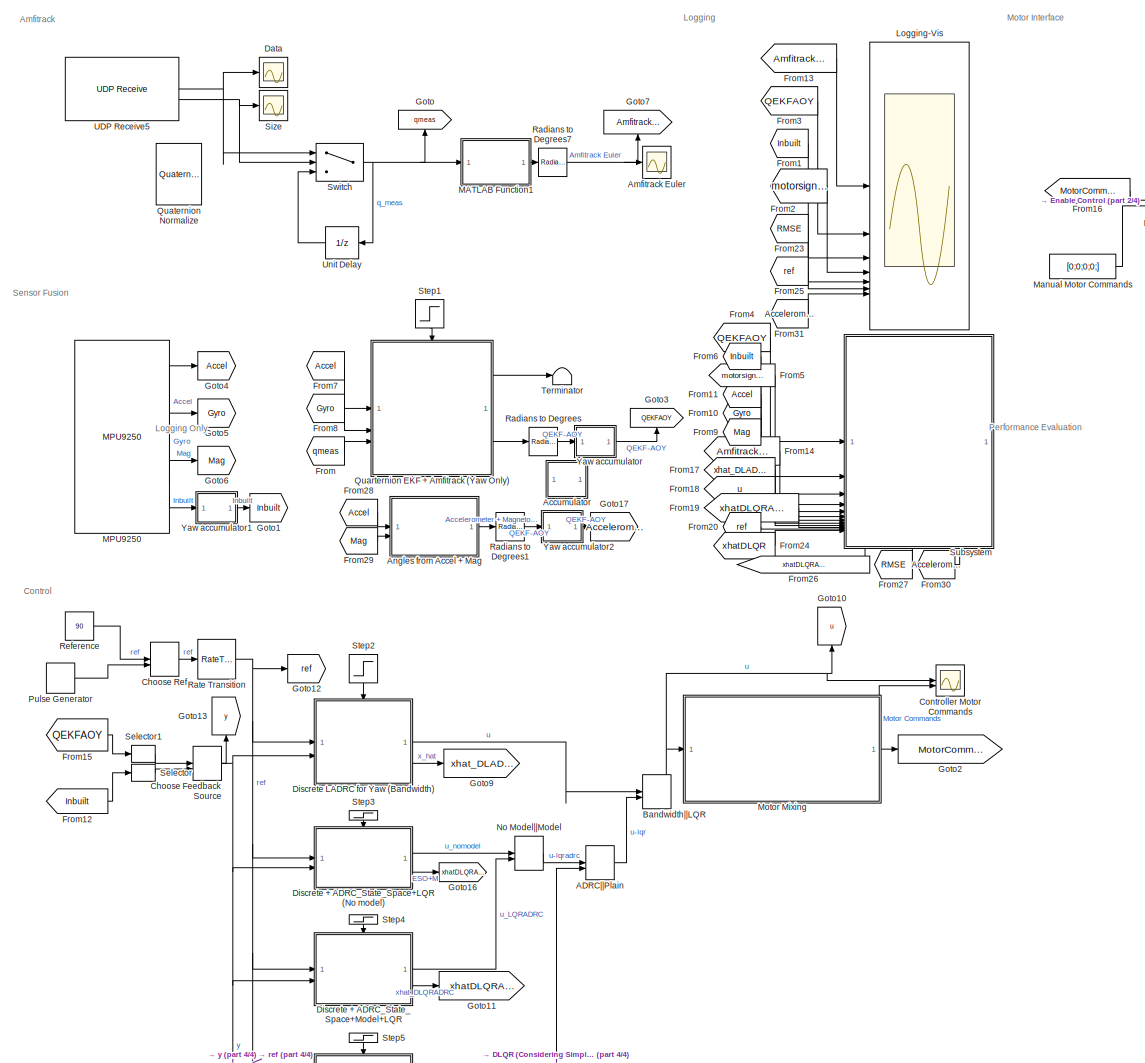
[diagram: root canvas - part 1/4, center side, full height]
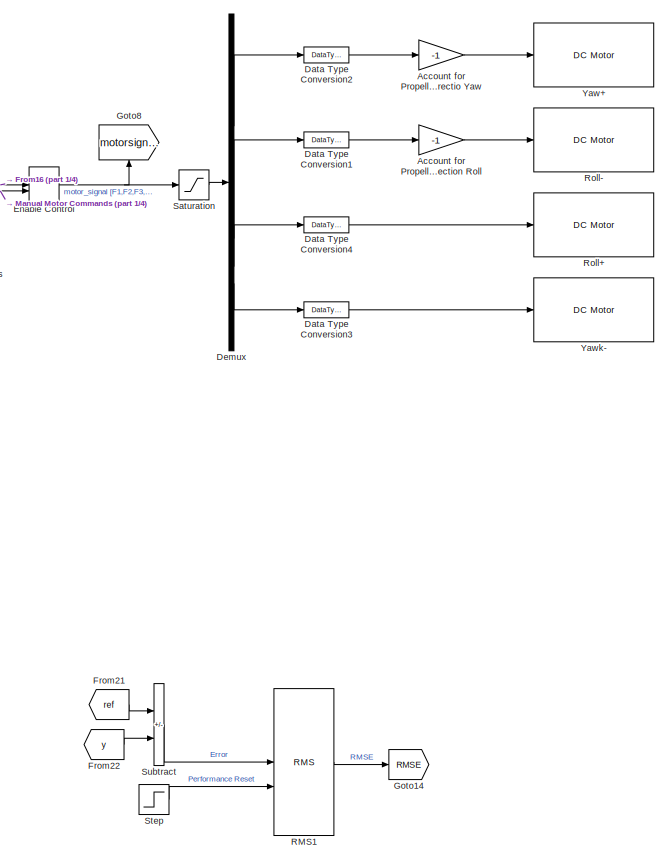
[diagram: root canvas - part 2/4, middle right region]
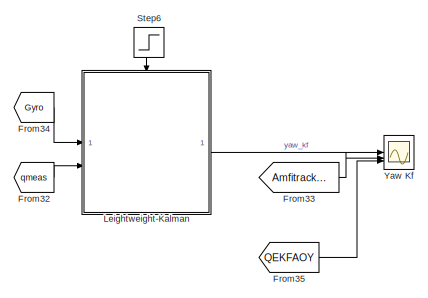
[diagram: root canvas - part 3/4, middle left region]
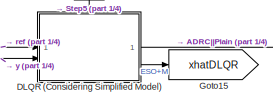
[diagram: root canvas - part 4/4, bottom center region]
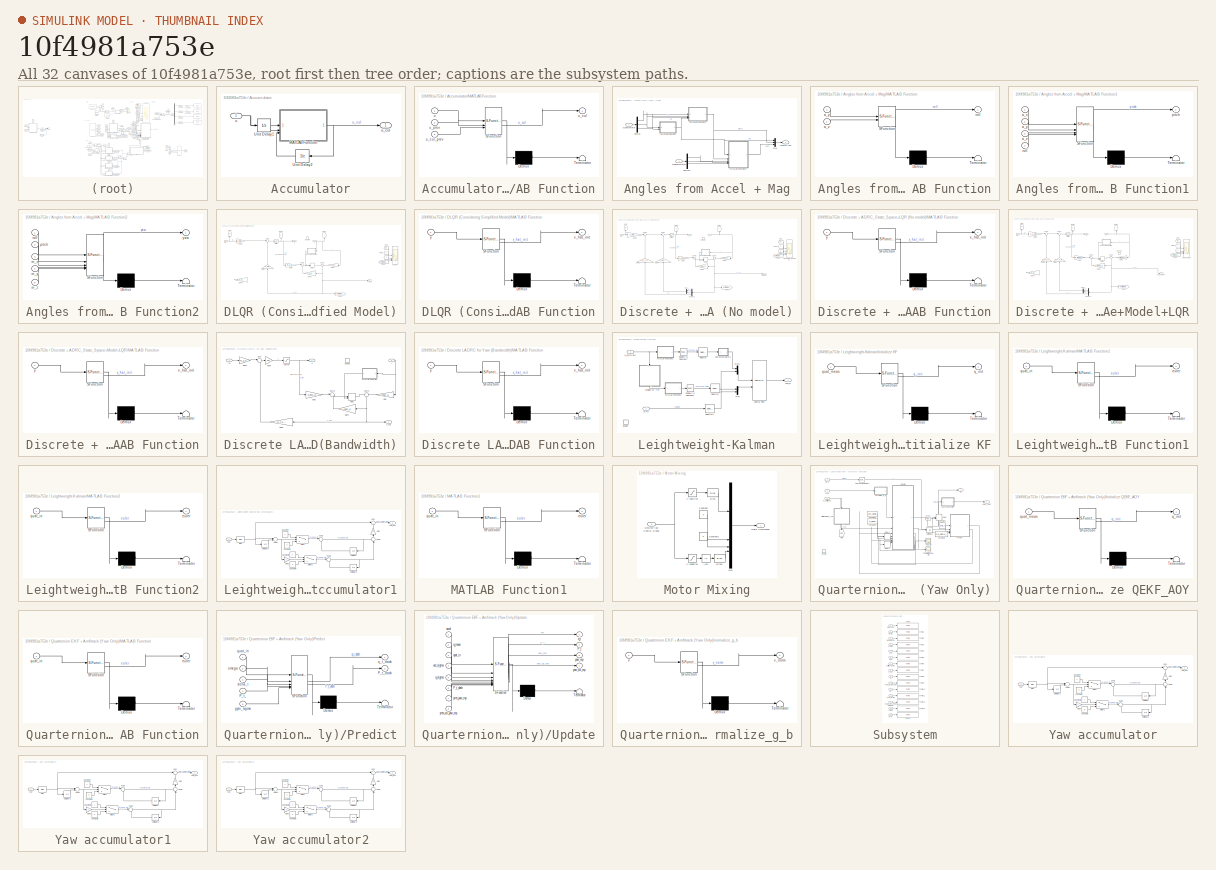
[diagram: thumbnail index - all 32 canvases of the model, root first then tree order]
MODEL slx_10f4981a753e
KIND model
CONFIG AbsTol = auto
CONFIG EnableMultiTasking = on
CONFIG FixedStep = auto
CONFIG MaxStep = auto
CONFIG MinStep = auto
CONFIG RelTol = 1e-3
CONFIG SampleTimeConstraint = Unconstrained
CONFIG SolverName = FixedStepAuto
CONFIG StartTime = 0.0
CONFIG StopTime = 80
BLOCK [ManualSwitch] ADRC||Plain
  CurrentSetting = 0
BLOCK [Gain] Account for Propeller Directio Yaw
  Gain = -1
  OutDataTypeStr = int8
BLOCK [Gain] Account for Propeller Direction Roll
  Gain = -1
  OutDataTypeStr = int8
BLOCK [SubSystem] Accumulator
  Commented = on
BLOCK [SubSystem] Accumulator/MATLAB Function
  ErrorFcn = Stateflow.Translate.translate
  PermitHierarchicalResolution = ExplicitOnly
  SFBlockType = MATLAB Function
  TreatAsAtomicUnit = on
BLOCK [Demux] Accumulator/MATLAB Function/ Demux 
  Outputs = 1
BLOCK [S-Function] Accumulator/MATLAB Function/ SFunction 
  EnableBusSupport = on
  FunctionName = sf_sfun
  PortCounts = [3 2]
  SFcnIsStateOwnerBlock = off
  SFunctionDeploymentMode = off
  Tag = Stateflow S-Function 2
BLOCK [Terminator] Accumulator/MATLAB Function/ Terminator 
BLOCK [Inport] Accumulator/MATLAB Function/u
BLOCK [Outport] Accumulator/MATLAB Function/u_cul
BLOCK [Inport] Accumulator/MATLAB Function/u_cul_prev
  Port = 3
BLOCK [Inport] Accumulator/MATLAB Function/u_prev
  Port = 2
BLOCK [UnitDelay] Accumulator/Unit Delay1
  HasFrameUpgradeWarning = on
  SampleTime = -1
BLOCK [UnitDelay] Accumulator/Unit Delay2
  HasFrameUpgradeWarning = on
  NameLocation = top
  SampleTime = -1
BLOCK [Inport] Accumulator/u
BLOCK [Outport] Accumulator/u_cul
BLOCK [Scope] Amfitrack Euler
  Floating = off
  NumInputPorts = 1
  ScopeSpecificationString = Simulink.scopes.TimeScopeBlockCfg('CurrentConfiguration', extmgr.ConfigurationSet(extmgr.Configuration('Core','General UI',true),extmgr.Configuration('Core','Source UI',true),extmgr.Configuration('Sources','WiredSimulink',true,'DataLoggingVariableName','ScopeData1','DataLogging',true,'DataLoggingSaveFormat','StructureWithTime'),extmgr.Configuration('Visuals','Time Domain',true,'SerializedDisplays'...<+1790ch>
BLOCK [SubSystem] Angles from Accel + Mag
BLOCK [Inport] Angles from Accel + Mag/Accelerometer
BLOCK [Demux] Angles from Accel + Mag/Demux
  Outputs = 3
BLOCK [Demux] Angles from Accel + Mag/Demux2
  Outputs = 3
BLOCK [SubSystem] Angles from Accel + Mag/MATLAB Function
  ErrorFcn = Stateflow.Translate.translate
  PermitHierarchicalResolution = ExplicitOnly
  SFBlockType = MATLAB Function
  TreatAsAtomicUnit = on
BLOCK [Demux] Angles from Accel + Mag/MATLAB Function/ Demux 
  Outputs = 1
BLOCK [S-Function] Angles from Accel + Mag/MATLAB Function/ SFunction 
  EnableBusSupport = on
  FunctionName = sf_sfun
  PortCounts = [2 2]
  SFcnIsStateOwnerBlock = off
  SFunctionDeploymentMode = off
  Tag = Stateflow S-Function 1
BLOCK [Terminator] Angles from Accel + Mag/MATLAB Function/ Terminator 
BLOCK [Inport] Angles from Accel + Mag/MATLAB Function/a_y
BLOCK [Inport] Angles from Accel + Mag/MATLAB Function/a_z
  Port = 2
BLOCK [Outport] Angles from Accel + Mag/MATLAB Function/roll
BLOCK [SubSystem] Angles from Accel + Mag/MATLAB Function1
  ErrorFcn = Stateflow.Translate.translate
  PermitHierarchicalResolution = ExplicitOnly
  SFBlockType = MATLAB Function
  TreatAsAtomicUnit = on
BLOCK [Demux] Angles from Accel + Mag/MATLAB Function1/ Demux 
  Outputs = 1
BLOCK [S-Function] Angles from Accel + Mag/MATLAB Function1/ SFunction 
  EnableBusSupport = on
  FunctionName = sf_sfun
  PortCounts = [4 2]
  SFcnIsStateOwnerBlock = off
  SFunctionDeploymentMode = off
  Tag = Stateflow S-Function 3
BLOCK [Terminator] Angles from Accel + Mag/MATLAB Function1/ Terminator 
BLOCK [Inport] Angles from Accel + Mag/MATLAB Function1/a_x
BLOCK [Inport] Angles from Accel + Mag/MATLAB Function1/a_y
  Port = 2
BLOCK [Inport] Angles from Accel + Mag/MATLAB Function1/a_z
  Port = 3
BLOCK [Outport] Angles from Accel + Mag/MATLAB Function1/pitch
BLOCK [Inport] Angles from Accel + Mag/MATLAB Function1/roll
  Port = 4
BLOCK [SubSystem] Angles from Accel + Mag/MATLAB Function2
  ErrorFcn = Stateflow.Translate.translate
  PermitHierarchicalResolution = ExplicitOnly
  SFBlockType = MATLAB Function
  TreatAsAtomicUnit = on
BLOCK [Demux] Angles from Accel + Mag/MATLAB Function2/ Demux 
  Outputs = 1
BLOCK [S-Function] Angles from Accel + Mag/MATLAB Function2/ SFunction 
  EnableBusSupport = on
  FunctionName = sf_sfun
  PortCounts = [5 2]
  SFcnIsStateOwnerBlock = off
  SFunctionDeploymentMode = off
  Tag = Stateflow S-Function 4
BLOCK [Terminator] Angles from Accel + Mag/MATLAB Function2/ Terminator 
BLOCK [Inport] Angles from Accel + Mag/MATLAB Function2/m_x
  Port = 3
BLOCK [Inport] Angles from Accel + Mag/MATLAB Function2/m_y
  Port = 4
BLOCK [Inport] Angles from Accel + Mag/MATLAB Function2/m_z
  Port = 5
BLOCK [Inport] Angles from Accel + Mag/MATLAB Function2/pitch
  Port = 2
BLOCK [Inport] Angles from Accel + Mag/MATLAB Function2/roll
BLOCK [Outport] Angles from Accel + Mag/MATLAB Function2/yaw
BLOCK [Inport] Angles from Accel + Mag/Magnetometer
  Port = 2
BLOCK [Mux] Angles from Accel + Mag/Mux
  DisplayOption = bar
  Inputs = 3
BLOCK [Outport] Angles from Accel + Mag/roll,pitch,yaw
BLOCK [ManualSwitch] Bandwidth||LQR
BLOCK [ManualSwitch] Choose Feedback Source
BLOCK [ManualSwitch] Choose Ref
BLOCK [Scope] Controller Motor Commands
  Floating = off
  NumInputPorts = 2
  ScopeSpecificationString = Simulink.scopes.TimeScopeBlockCfg('CurrentConfiguration', extmgr.ConfigurationSet(extmgr.Configuration('Core','General UI',true),extmgr.Configuration('Core','Source UI',true),extmgr.Configuration('Sources','WiredSimulink',true,'DataLoggingVariableName','ScopeData1'),extmgr.Configuration('Visuals','Time Domain',true,'SerializedDisplays',{struct('MinYLimReal','-66.25','MaxYLimReal','96.25','YLabelRe...<+1700ch>
BLOCK [SubSystem] DLQR (Considering Simplified Model)
BLOCK [Scope] DLQR (Considering Simplified Model)/DLQR
  Floating = off
  NumInputPorts = 4
  ScopeSpecificationString = Simulink.scopes.TimeScopeBlockCfg('CurrentConfiguration', extmgr.ConfigurationSet(extmgr.Configuration('Core','General UI',true),extmgr.Configuration('Core','Source UI',true),extmgr.Configuration('Sources','WiredSimulink',true),extmgr.Configuration('Visuals','Time Domain',true,'SerializedDisplays',{struct('MinYLimReal','-1.30403','MaxYLimReal','2.24551','YLabelReal','','MinYLimMag','0.00000','MaxY...<+1696ch>
BLOCK [Delay] DLQR (Considering Simplified Model)/Delay
  DelayLength = 1
  InitialConditionSource = Input port
  InputPortMap = u0,p4
  SampleTime = delta_t
BLOCK [EnablePort] DLQR (Considering Simplified Model)/Enable
BLOCK [From] DLQR (Considering Simplified Model)/From
  GotoTag = ref
BLOCK [From] DLQR (Considering Simplified Model)/From1
  GotoTag = y
BLOCK [From] DLQR (Considering Simplified Model)/From2
  GotoTag = u
BLOCK [From] DLQR (Considering Simplified Model)/From3
  GotoTag = estimatedstates
BLOCK [Gain] DLQR (Considering Simplified Model)/Gain4
  Gain = k_dlqr
  Multiplication = Matrix(K*u)
  NameLocation = right
BLOCK [Gain] DLQR (Considering Simplified Model)/Gain5
  Gain = k_dlqr(1)
BLOCK [Gain] DLQR (Considering Simplified Model)/Gain6
  Gain = l_o_d
  NameLocation = top
BLOCK [Gain] DLQR (Considering Simplified Model)/Gain7
  Gain = B_O_d
BLOCK [Gain] DLQR (Considering Simplified Model)/Gain8
  Gain = A_O_d
  Multiplication = Matrix(K*u)
  NameLocation = top
BLOCK [Gain] DLQR (Considering Simplified Model)/Gain9
  Commented = on
  Gain = [k_T_d 1]
  Multiplication = Matrix(K*u)
  NameLocation = top
BLOCK [Goto] DLQR (Considering Simplified Model)/Goto
  GotoTag = ref
  NameLocation = right
BLOCK [Goto] DLQR (Considering Simplified Model)/Goto1
  GotoTag = y
  NameLocation = right
BLOCK [Goto] DLQR (Considering Simplified Model)/Goto2
  GotoTag = u
  NameLocation = right
BLOCK [Goto] DLQR (Considering Simplified Model)/Goto3
  GotoTag = estimatedstates
BLOCK [Saturate] DLQR (Considering Simplified Model)/Limiter
  LowerLimit = -DLQR_max_effort
  UpperLimit = DLQR_max_effort
BLOCK [SubSystem] DLQR (Considering Simplified Model)/MATLAB Function
  ErrorFcn = Stateflow.Translate.translate
  NameLocation = top
  PermitHierarchicalResolution = ExplicitOnly
  SFBlockType = MATLAB Function
  TreatAsAtomicUnit = on
BLOCK [Demux] DLQR (Considering Simplified Model)/MATLAB Function/ Demux 
  Outputs = 1
BLOCK [S-Function] DLQR (Considering Simplified Model)/MATLAB Function/ SFunction 
  EnableBusSupport = on
  FunctionName = sf_sfun
  PortCounts = [1 2]
  SFcnIsStateOwnerBlock = off
  SFunctionDeploymentMode = off
  Tag = Stateflow S-Function 7
BLOCK [Terminator] DLQR (Considering Simplified Model)/MATLAB Function/ Terminator 
BLOCK [Outport] DLQR (Considering Simplified Model)/MATLAB Function/x_hat_init
BLOCK [Inport] DLQR (Considering Simplified Model)/MATLAB Function/y
BLOCK [Sum] DLQR (Considering Simplified Model)/Sum1
  Inputs = |+-
BLOCK [Sum] DLQR (Considering Simplified Model)/Sum8
  Inputs = |++
BLOCK [Sum] DLQR (Considering Simplified Model)/Sum9
  Inputs = +|+
  NameLocation = left
BLOCK [Inport] DLQR (Considering Simplified Model)/ref
BLOCK [Outport] DLQR (Considering Simplified Model)/u
BLOCK [Outport] DLQR (Considering Simplified Model)/x_hat
  Port = 2
BLOCK [Inport] DLQR (Considering Simplified Model)/y
  Port = 2
BLOCK [Scope] Data
  Floating = off
  NumInputPorts = 1
  ScopeSpecificationString = Simulink.scopes.TimeScopeBlockCfg('CurrentConfiguration', extmgr.ConfigurationSet(extmgr.Configuration('Core','General UI',true),extmgr.Configuration('Core','Source UI',true),extmgr.Configuration('Sources','WiredSimulink',true,'DataLoggingVariableName','ScopeData2'),extmgr.Configuration('Visuals','Time Domain',true,'SerializedDisplays',{struct('MinYLimReal','-1.24752','MaxYLimReal','1.23367','YLab...<+7707ch>
BLOCK [DataTypeConversion] Data Type Conversion1
  OutDataTypeStr = int8
  RndMeth = Floor
  SaturateOnIntegerOverflow = off
BLOCK [DataTypeConversion] Data Type Conversion2
  OutDataTypeStr = int8
  RndMeth = Floor
  SaturateOnIntegerOverflow = off
BLOCK [DataTypeConversion] Data Type Conversion3
  OutDataTypeStr = int8
  RndMeth = Floor
  SaturateOnIntegerOverflow = off
BLOCK [DataTypeConversion] Data Type Conversion4
  OutDataTypeStr = int8
  RndMeth = Floor
  SaturateOnIntegerOverflow = off
BLOCK [Demux] Demux
BLOCK [SubSystem] Discrete + ADRC_State_Space+LQR (No model)
BLOCK [Delay] Discrete + ADRC_State_Space+LQR (No model)/Delay
  DelayLength = 1
  InitialConditionSource = Input port
  InputPortMap = u0,p4
  SampleTime = delta_t
BLOCK [Demux] Discrete + ADRC_State_Space+LQR (No model)/Demux1
  NameLocation = top
  Outputs = N+1
BLOCK [Outport] Discrete + ADRC_State_Space+LQR (No model)/ESO - out
  Port = 2
BLOCK [EnablePort] Discrete + ADRC_State_Space+LQR (No model)/Enable
BLOCK [From] Discrete + ADRC_State_Space+LQR (No model)/From
  GotoTag = ref
BLOCK [From] Discrete + ADRC_State_Space+LQR (No model)/From1
  GotoTag = y
BLOCK [From] Discrete + ADRC_State_Space+LQR (No model)/From2
  GotoTag = u
BLOCK [From] Discrete + ADRC_State_Space+LQR (No model)/From3
  GotoTag = estimatedstates
BLOCK [Gain] Discrete + ADRC_State_Space+LQR (No model)/Gain2
  Gain = k_d_T_dlqr_adrcnm
  NameLocation = right
BLOCK [Gain] Discrete + ADRC_State_Space+LQR (No model)/Gain4
  Gain = k_dlqr_adrcnm
  Multiplication = Matrix(K*u)
  NameLocation = right
BLOCK [Gain] Discrete + ADRC_State_Space+LQR (No model)/Gain5
  Gain = k_dlqr_adrcnm(1)
BLOCK [Gain] Discrete + ADRC_State_Space+LQR (No model)/Gain6
  Gain = l_ESO_d
  NameLocation = top
BLOCK [Gain] Discrete + ADRC_State_Space+LQR (No model)/Gain7
  Gain = b_ESO_d
BLOCK [Gain] Discrete + ADRC_State_Space+LQR (No model)/Gain8
  Gain = A_ESO_d
  Multiplication = Matrix(K*u)
  NameLocation = top
BLOCK [Goto] Discrete + ADRC_State_Space+LQR (No model)/Goto
  GotoTag = ref
  NameLocation = right
BLOCK [Goto] Discrete + ADRC_State_Space+LQR (No model)/Goto1
  GotoTag = y
  NameLocation = right
BLOCK [Goto] Discrete + ADRC_State_Space+LQR (No model)/Goto2
  GotoTag = u
  NameLocation = right
BLOCK [Goto] Discrete + ADRC_State_Space+LQR (No model)/Goto3
  GotoTag = estimatedstates
BLOCK [Scope] Discrete + ADRC_State_Space+LQR (No model)/LQRADRC+NoModel
  Floating = off
  NumInputPorts = 4
  ScopeSpecificationString = Simulink.scopes.TimeScopeBlockCfg('CurrentConfiguration', extmgr.ConfigurationSet(extmgr.Configuration('Core','General UI',true),extmgr.Configuration('Core','Source UI',true),extmgr.Configuration('Sources','WiredSimulink',true),extmgr.Configuration('Visuals','Time Domain',true,'SerializedDisplays',{struct('MinYLimReal','-90.00000','MaxYLimReal','110.00000','YLabelReal','','MinYLimMag','0.00000','M...<+1711ch>
BLOCK [Saturate] Discrete + ADRC_State_Space+LQR (No model)/Limiter
  LowerLimit = -DLQR_ADRCNM_max_effort
  UpperLimit = DLQR_ADRCNM_max_effort
BLOCK [SubSystem] Discrete + ADRC_State_Space+LQR (No model)/MATLAB Function
  ErrorFcn = Stateflow.Translate.translate
  NameLocation = top
  PermitHierarchicalResolution = ExplicitOnly
  SFBlockType = MATLAB Function
  TreatAsAtomicUnit = on
BLOCK [Demux] Discrete + ADRC_State_Space+LQR (No model)/MATLAB Function/ Demux 
  Outputs = 1
BLOCK [S-Function] Discrete + ADRC_State_Space+LQR (No model)/MATLAB Function/ SFunction 
  EnableBusSupport = on
  FunctionName = sf_sfun
  PortCounts = [1 2]
  SFcnIsStateOwnerBlock = off
  SFunctionDeploymentMode = off
  Tag = Stateflow S-Function 5
BLOCK [Terminator] Discrete + ADRC_State_Space+LQR (No model)/MATLAB Function/ Terminator 
BLOCK [Outport] Discrete + ADRC_State_Space+LQR (No model)/MATLAB Function/x_hat_init
BLOCK [Inport] Discrete + ADRC_State_Space+LQR (No model)/MATLAB Function/y
BLOCK [Mux] Discrete + ADRC_State_Space+LQR (No model)/Mux1
  DisplayOption = bar
  Inputs = 2
  NameLocation = top
BLOCK [Sum] Discrete + ADRC_State_Space+LQR (No model)/Sum1
  Inputs = |+-
BLOCK [Sum] Discrete + ADRC_State_Space+LQR (No model)/Sum2
  Inputs = |+-
BLOCK [Sum] Discrete + ADRC_State_Space+LQR (No model)/Sum8
  Inputs = |++
BLOCK [Sum] Discrete + ADRC_State_Space+LQR (No model)/Sum9
  Inputs = +|+
  NameLocation = left
BLOCK [Inport] Discrete + ADRC_State_Space+LQR (No model)/ref
BLOCK [Outport] Discrete + ADRC_State_Space+LQR (No model)/u
BLOCK [Inport] Discrete + ADRC_State_Space+LQR (No model)/y
  Port = 2
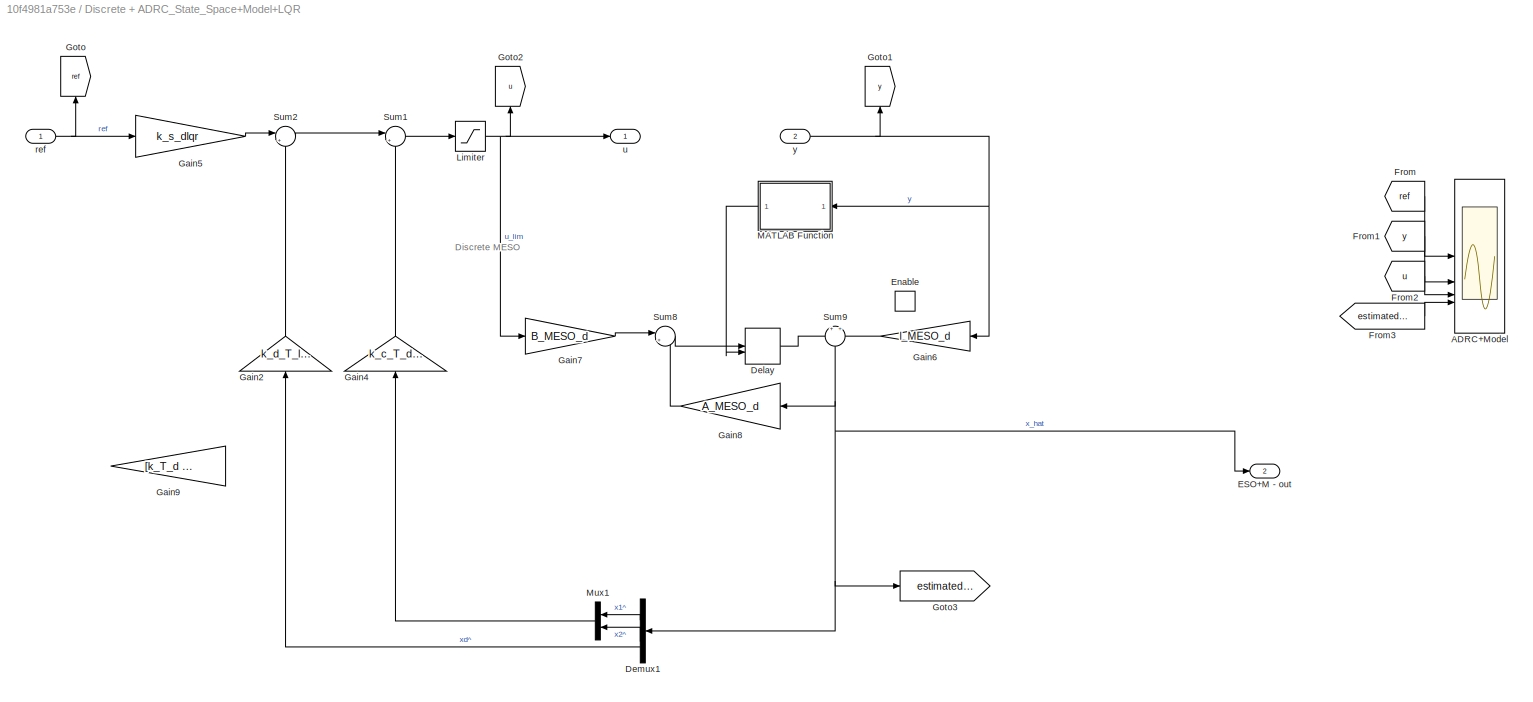
BLOCK [SubSystem] Discrete + ADRC_State_Space+Model+LQR
BLOCK [Scope] Discrete + ADRC_State_Space+Model+LQR/ADRC+Model
  Floating = off
  NumInputPorts = 4
  ScopeSpecificationString = Simulink.scopes.TimeScopeBlockCfg('CurrentConfiguration', extmgr.ConfigurationSet(extmgr.Configuration('Core','General UI',true),extmgr.Configuration('Core','Source UI',true),extmgr.Configuration('Sources','WiredSimulink',true),extmgr.Configuration('Visuals','Time Domain',true,'SerializedDisplays',{struct('MinYLimReal','85.35866','MaxYLimReal','94.04968','YLabelReal','','MinYLimMag','85.35866','Ma...<+1709ch>
BLOCK [Delay] Discrete + ADRC_State_Space+Model+LQR/Delay
  DelayLength = 1
  InitialConditionSource = Input port
  InputPortMap = u0,p4
  SampleTime = delta_t
BLOCK [Demux] Discrete + ADRC_State_Space+Model+LQR/Demux1
  NameLocation = top
  Outputs = N+1
BLOCK [Outport] Discrete + ADRC_State_Space+Model+LQR/ESO+M - out
  Port = 2
BLOCK [EnablePort] Discrete + ADRC_State_Space+Model+LQR/Enable
BLOCK [From] Discrete + ADRC_State_Space+Model+LQR/From
  GotoTag = ref
BLOCK [From] Discrete + ADRC_State_Space+Model+LQR/From1
  GotoTag = y
BLOCK [From] Discrete + ADRC_State_Space+Model+LQR/From2
  GotoTag = u
BLOCK [From] Discrete + ADRC_State_Space+Model+LQR/From3
  GotoTag = estimatedstates
BLOCK [Gain] Discrete + ADRC_State_Space+Model+LQR/Gain2
  Gain = k_d_T_lqr
  NameLocation = right
BLOCK [Gain] Discrete + ADRC_State_Space+Model+LQR/Gain4
  Gain = k_c_T_dlqr
  Multiplication = Matrix(K*u)
  NameLocation = right
BLOCK [Gain] Discrete + ADRC_State_Space+Model+LQR/Gain5
  Gain = k_s_dlqr
BLOCK [Gain] Discrete + ADRC_State_Space+Model+LQR/Gain6
  Gain = l_MESO_d
  NameLocation = top
BLOCK [Gain] Discrete + ADRC_State_Space+Model+LQR/Gain7
  Gain = B_MESO_d
BLOCK [Gain] Discrete + ADRC_State_Space+Model+LQR/Gain8
  Gain = A_MESO_d
  Multiplication = Matrix(K*u)
  NameLocation = top
BLOCK [Gain] Discrete + ADRC_State_Space+Model+LQR/Gain9
  Commented = on
  Gain = [k_T_d 1]
  Multiplication = Matrix(K*u)
  NameLocation = top
BLOCK [Goto] Discrete + ADRC_State_Space+Model+LQR/Goto
  GotoTag = ref
  NameLocation = right
BLOCK [Goto] Discrete + ADRC_State_Space+Model+LQR/Goto1
  GotoTag = y
  NameLocation = right
BLOCK [Goto] Discrete + ADRC_State_Space+Model+LQR/Goto2
  GotoTag = u
  NameLocation = right
BLOCK [Goto] Discrete + ADRC_State_Space+Model+LQR/Goto3
  GotoTag = estimatedstates
BLOCK [Saturate] Discrete + ADRC_State_Space+Model+LQR/Limiter
  LowerLimit = -DLQRMADRC_max_effort
  UpperLimit = DLQRMADRC_max_effort
BLOCK [SubSystem] Discrete + ADRC_State_Space+Model+LQR/MATLAB Function
  ErrorFcn = Stateflow.Translate.translate
  NameLocation = top
  PermitHierarchicalResolution = ExplicitOnly
  SFBlockType = MATLAB Function
  TreatAsAtomicUnit = on
BLOCK [Demux] Discrete + ADRC_State_Space+Model+LQR/MATLAB Function/ Demux 
  Outputs = 1
BLOCK [S-Function] Discrete + ADRC_State_Space+Model+LQR/MATLAB Function/ SFunction 
  EnableBusSupport = on
  FunctionName = sf_sfun
  PortCounts = [1 2]
  SFcnIsStateOwnerBlock = off
  SFunctionDeploymentMode = off
  Tag = Stateflow S-Function 6
BLOCK [Terminator] Discrete + ADRC_State_Space+Model+LQR/MATLAB Function/ Terminator 
BLOCK [Outport] Discrete + ADRC_State_Space+Model+LQR/MATLAB Function/x_hat_init
BLOCK [Inport] Discrete + ADRC_State_Space+Model+LQR/MATLAB Function/y
BLOCK [Mux] Discrete + ADRC_State_Space+Model+LQR/Mux1
  DisplayOption = bar
  Inputs = 2
  NameLocation = top
BLOCK [Sum] Discrete + ADRC_State_Space+Model+LQR/Sum1
  Inputs = |+-
BLOCK [Sum] Discrete + ADRC_State_Space+Model+LQR/Sum2
  Inputs = |+-
BLOCK [Sum] Discrete + ADRC_State_Space+Model+LQR/Sum8
  Inputs = |++
BLOCK [Sum] Discrete + ADRC_State_Space+Model+LQR/Sum9
  Inputs = +|+
  NameLocation = left
BLOCK [Inport] Discrete + ADRC_State_Space+Model+LQR/ref
BLOCK [Outport] Discrete + ADRC_State_Space+Model+LQR/u
BLOCK [Inport] Discrete + ADRC_State_Space+Model+LQR/y
  Port = 2
BLOCK [SubSystem] Discrete LADRC for Yaw (Bandwidth)
BLOCK [Delay] Discrete LADRC for Yaw (Bandwidth)/Delay
  DelayLength = 1
  InitialConditionSource = Input port
  InputPortMap = u0,p4
  SampleTime = delta_t
BLOCK [EnablePort] Discrete LADRC for Yaw (Bandwidth)/Enable
BLOCK [Gain] Discrete LADRC for Yaw (Bandwidth)/Gain
  Gain = l_ESO_d
  NameLocation = top
BLOCK [Gain] Discrete LADRC for Yaw (Bandwidth)/Gain1
  Gain = b_ESO_d
BLOCK [Gain] Discrete LADRC for Yaw (Bandwidth)/Gain2
  Gain = A_ESO_d
  Multiplication = Matrix(K*u)
  NameLocation = top
BLOCK [Gain] Discrete LADRC for Yaw (Bandwidth)/Gain3
  Gain = k1_c_d
BLOCK [Gain] Discrete LADRC for Yaw (Bandwidth)/Gain4
  Gain = 1/b0
BLOCK [Gain] Discrete LADRC for Yaw (Bandwidth)/Gain5
  Gain = [k_T_d 1]
  Multiplication = Matrix(K*u)
  NameLocation = top
BLOCK [Saturate] Discrete LADRC for Yaw (Bandwidth)/Limiter
  LowerLimit = -DLADRC_max_effort
  UpperLimit = DLADRC_max_effort
BLOCK [SubSystem] Discrete LADRC for Yaw (Bandwidth)/MATLAB Function
  ErrorFcn = Stateflow.Translate.translate
  NameLocation = top
  PermitHierarchicalResolution = ExplicitOnly
  SFBlockType = MATLAB Function
  TreatAsAtomicUnit = on
BLOCK [Demux] Discrete LADRC for Yaw (Bandwidth)/MATLAB Function/ Demux 
  Outputs = 1
BLOCK [S-Function] Discrete LADRC for Yaw (Bandwidth)/MATLAB Function/ SFunction 
  EnableBusSupport = on
  FunctionName = sf_sfun
  PortCounts = [1 2]
  SFcnIsStateOwnerBlock = off
  SFunctionDeploymentMode = off
  Tag = Stateflow S-Function 8
BLOCK [Terminator] Discrete LADRC for Yaw (Bandwidth)/MATLAB Function/ Terminator 
BLOCK [Outport] Discrete LADRC for Yaw (Bandwidth)/MATLAB Function/x_hat_init
BLOCK [Inport] Discrete LADRC for Yaw (Bandwidth)/MATLAB Function/y
BLOCK [Sum] Discrete LADRC for Yaw (Bandwidth)/Sum
  Inputs = |+-
BLOCK [Sum] Discrete LADRC for Yaw (Bandwidth)/Sum8
  Inputs = |++
BLOCK [Sum] Discrete LADRC for Yaw (Bandwidth)/Sum9
  Inputs = +|+
  NameLocation = left
BLOCK [Inport] Discrete LADRC for Yaw (Bandwidth)/ref
BLOCK [Outport] Discrete LADRC for Yaw (Bandwidth)/u
BLOCK [Outport] Discrete LADRC for Yaw (Bandwidth)/x_hat
  Port = 2
BLOCK [Inport] Discrete LADRC for Yaw (Bandwidth)/y
  Port = 2
BLOCK [ManualSwitch] Enable Control
BLOCK [From] From
  GotoTag = qmeas
BLOCK [From] From1
  GotoTag = Inbuilt
BLOCK [From] From10
  GotoTag = Gyro
BLOCK [From] From11
  GotoTag = Accel
BLOCK [From] From12
  GotoTag = Inbuilt
BLOCK [From] From13
  GotoTag = AmfitrackEuler
BLOCK [From] From14
  GotoTag = AmfitrackEuler
BLOCK [From] From15
  GotoTag = QEKFAOY
BLOCK [From] From16
  GotoTag = MotorCommands
BLOCK [From] From17
  GotoTag = xhat_DLADRC
BLOCK [From] From18
  GotoTag = u
BLOCK [From] From19
  GotoTag = xhatDLQRADRC
BLOCK [From] From2
  GotoTag = motorsignal
BLOCK [From] From20
  GotoTag = ref
BLOCK [From] From21
  GotoTag = ref
BLOCK [From] From22
  GotoTag = y
BLOCK [From] From23
  GotoTag = RMSE
BLOCK [From] From24
  GotoTag = xhatDLQR
BLOCK [From] From25
  GotoTag = ref
BLOCK [From] From26
  GotoTag = xhatDLQRADRCNOMODEL
BLOCK [From] From27
  GotoTag = RMSE
BLOCK [From] From28
  GotoTag = Accel
BLOCK [From] From29
  GotoTag = Mag
BLOCK [From] From3
  GotoTag = QEKFAOY
BLOCK [From] From30
  GotoTag = AccelerometerMagnetometerAngleEstimates
BLOCK [From] From31
  GotoTag = AccelerometerMagnetometerAngleEstimates
BLOCK [From] From32
  Commented = on
  GotoTag = qmeas
BLOCK [From] From33
  Commented = on
  GotoTag = AmfitrackEuler
BLOCK [From] From34
  Commented = on
  GotoTag = Gyro
BLOCK [From] From35
  Commented = on
  GotoTag = QEKFAOY
BLOCK [From] From4
  GotoTag = QEKFAOY
BLOCK [From] From5
  GotoTag = motorsignal
BLOCK [From] From6
  GotoTag = Inbuilt
BLOCK [From] From7
  GotoTag = Accel
BLOCK [From] From8
  GotoTag = Gyro
BLOCK [From] From9
  GotoTag = Mag
BLOCK [Goto] Goto
  GotoTag = qmeas
  NameLocation = right
BLOCK [Goto] Goto1
  GotoTag = Inbuilt
BLOCK [Goto] Goto10
  GotoTag = u
  NameLocation = right
BLOCK [Goto] Goto11
  GotoTag = xhatDLQRADRC
BLOCK [Goto] Goto12
  GotoTag = ref
BLOCK [Goto] Goto13
  GotoTag = y
  NameLocation = right
BLOCK [Goto] Goto14
  GotoTag = RMSE
BLOCK [Goto] Goto15
  GotoTag = xhatDLQR
BLOCK [Goto] Goto16
  GotoTag = xhatDLQRADRCNOMODEL
BLOCK [Goto] Goto17
  GotoTag = AccelerometerMagnetometerAngleEstimates
BLOCK [Goto] Goto2
  GotoTag = MotorCommands
BLOCK [Goto] Goto3
  GotoTag = QEKFAOY
  NameLocation = right
BLOCK [Goto] Goto4
  GotoTag = Accel
BLOCK [Goto] Goto5
  GotoTag = Gyro
BLOCK [Goto] Goto6
  GotoTag = Mag
BLOCK [Goto] Goto7
  GotoTag = AmfitrackEuler
  NameLocation = right
BLOCK [Goto] Goto8
  GotoTag = motorsignal
  NameLocation = right
BLOCK [Goto] Goto9
  GotoTag = xhat_DLADRC
BLOCK [SubSystem] Leightweight-Kalman
  Commented = on
BLOCK [EnablePort] Leightweight-Kalman/Enable
BLOCK [Inport] Leightweight-Kalman/Gyro
BLOCK [SubSystem] Leightweight-Kalman/Initialize KF
  ErrorFcn = Stateflow.Translate.translate
  NameLocation = left
  PermitHierarchicalResolution = ExplicitOnly
  SFBlockType = MATLAB Function
  TreatAsAtomicUnit = on
BLOCK [Demux] Leightweight-Kalman/Initialize KF/ Demux 
  Outputs = 1
BLOCK [S-Function] Leightweight-Kalman/Initialize KF/ SFunction 
  EnableBusSupport = on
  FunctionName = sf_sfun
  PortCounts = [1 2]
  SFcnIsStateOwnerBlock = off
  SFunctionDeploymentMode = off
  Tag = Stateflow S-Function 9
BLOCK [Terminator] Leightweight-Kalman/Initialize KF/ Terminator 
BLOCK [Outport] Leightweight-Kalman/Initialize KF/q_init
BLOCK [Inport] Leightweight-Kalman/Initialize KF/quat_meas
BLOCK [Reference] Leightweight-Kalman/Kalman Filter  REF=ctrlSharedLib/Kalman Filter
  LibrarySourceBlock = cstblocks/State Estimation/Kalman Filter
  SourceBlock = ctrlSharedLib/Kalman Filter
  SourceType = ctrlKalmanFilter
BLOCK [SubSystem] Leightweight-Kalman/MATLAB Function1
  ErrorFcn = Stateflow.Translate.translate
  PermitHierarchicalResolution = ExplicitOnly
  SFBlockType = MATLAB Function
  TreatAsAtomicUnit = on
BLOCK [Demux] Leightweight-Kalman/MATLAB Function1/ Demux 
  Outputs = 1
BLOCK [S-Function] Leightweight-Kalman/MATLAB Function1/ SFunction 
  EnableBusSupport = on
  FunctionName = sf_sfun
  PortCounts = [1 2]
  SFcnIsStateOwnerBlock = off
  SFunctionDeploymentMode = off
  Tag = Stateflow S-Function 10
BLOCK [Terminator] Leightweight-Kalman/MATLAB Function1/ Terminator 
BLOCK [Outport] Leightweight-Kalman/MATLAB Function1/euler
BLOCK [Inport] Leightweight-Kalman/MATLAB Function1/quat_in
BLOCK [SubSystem] Leightweight-Kalman/MATLAB Function2
  ErrorFcn = Stateflow.Translate.translate
  PermitHierarchicalResolution = ExplicitOnly
  SFBlockType = MATLAB Function
  TreatAsAtomicUnit = on
BLOCK [Demux] Leightweight-Kalman/MATLAB Function2/ Demux 
  Outputs = 1
BLOCK [S-Function] Leightweight-Kalman/MATLAB Function2/ SFunction 
  EnableBusSupport = on
  FunctionName = sf_sfun
  PortCounts = [1 2]
  SFcnIsStateOwnerBlock = off
  SFunctionDeploymentMode = off
  Tag = Stateflow S-Function 11
BLOCK [Terminator] Leightweight-Kalman/MATLAB Function2/ Terminator 
BLOCK [Outport] Leightweight-Kalman/MATLAB Function2/euler
BLOCK [Inport] Leightweight-Kalman/MATLAB Function2/quat_in
BLOCK [Mux] Leightweight-Kalman/Mux
  DisplayOption = bar
  Inputs = 2
BLOCK [Mux] Leightweight-Kalman/Mux1
  DisplayOption = bar
  Inputs = 2
BLOCK [Reference] Leightweight-Kalman/Radians to Degrees1  REF=simulink_extras/Transformations/Radians
to Degrees
  SourceBlock = simulink_extras/Transformations/Radians\nto Degrees
  SourceType = RadiansToDegrees
BLOCK [Reference] Leightweight-Kalman/Radians to Degrees7  REF=simulink_extras/Transformations/Radians
to Degrees
  SourceBlock = simulink_extras/Transformations/Radians\nto Degrees
  SourceType = RadiansToDegrees
BLOCK [Selector] Leightweight-Kalman/Selector
  IndexOptions = Index vector (dialog)
  Indices = [3]
  InputPortWidth = 3
  OutputSizes = 1
BLOCK [Selector] Leightweight-Kalman/Selector1
  IndexOptions = Index vector (dialog)
  Indices = [3]
  InputPortWidth = 3
  OutputSizes = 1
BLOCK [Selector] Leightweight-Kalman/Selector2
  IndexOptions = Index vector (dialog)
  Indices = [3]
  InputPortWidth = 3
  OutputSizes = 1
BLOCK [SubSystem] Leightweight-Kalman/Yaw accumulator1
  ShowPortLabels = none
BLOCK [Bias] Leightweight-Kalman/Yaw accumulator1/Bias
  SaturateOnIntegerOverflow = off
BLOCK [Constant] Leightweight-Kalman/Yaw accumulator1/Constant4
BLOCK [Constant] Leightweight-Kalman/Yaw accumulator1/Constant5
  Value = 0
BLOCK [Constant] Leightweight-Kalman/Yaw accumulator1/Constant8
BLOCK [Constant] Leightweight-Kalman/Yaw accumulator1/Constant9
  Value = 0
BLOCK [Gain] Leightweight-Kalman/Yaw accumulator1/Gain
  Gain = 360
  NameLocation = right
BLOCK [Gain] Leightweight-Kalman/Yaw accumulator1/Gain3
  Gain = -1
BLOCK [Sum] Leightweight-Kalman/Yaw accumulator1/Sum
  Inputs = |++
BLOCK [Sum] Leightweight-Kalman/Yaw accumulator1/Sum1
  Inputs = |++
BLOCK [Sum] Leightweight-Kalman/Yaw accumulator1/Sum2
  Inputs = |-+
BLOCK [Sum] Leightweight-Kalman/Yaw accumulator1/Sum5
  Inputs = |++
BLOCK [Sum] Leightweight-Kalman/Yaw accumulator1/Sum6
  Inputs = +-|
  NameLocation = right
BLOCK [Switch] Leightweight-Kalman/Yaw accumulator1/Switch
  Criteria = u2 > Threshold
  InputSameDT = off
  SaturateOnIntegerOverflow = off
  Threshold = 180
BLOCK [Switch] Leightweight-Kalman/Yaw accumulator1/Switch1
  Criteria = u2 > Threshold
  InputSameDT = off
  SaturateOnIntegerOverflow = off
  Threshold = 180
BLOCK [UnitDelay] Leightweight-Kalman/Yaw accumulator1/Unit Delay
  HasFrameUpgradeWarning = on
  SampleTime = -1
BLOCK [UnitDelay] Leightweight-Kalman/Yaw accumulator1/Unit Delay1
  HasFrameUpgradeWarning = on
  SampleTime = -1
BLOCK [UnitDelay] Leightweight-Kalman/Yaw accumulator1/Unit Delay3
  HasFrameUpgradeWarning = on
  SampleTime = -1
BLOCK [Inport] Leightweight-Kalman/Yaw accumulator1/yaw
BLOCK [Outport] Leightweight-Kalman/Yaw accumulator1/yaw_acc
BLOCK [Inport] Leightweight-Kalman/q_amfitrack
  Port = 2
BLOCK [Outport] Leightweight-Kalman/yaw_kf
BLOCK [Scope] Logging-Vis
  Floating = off
  NumInputPorts = 7
  ScopeSpecificationString = Simulink.scopes.TimeScopeBlockCfg('CurrentConfiguration', extmgr.ConfigurationSet(extmgr.Configuration('Core','General UI',true,'FigureColor',[0 0 0]),extmgr.Configuration('Core','Source UI',true),extmgr.Configuration('Sources','WiredSimulink',true,'DataLoggingVariableName','ScopeData3'),extmgr.Configuration('Visuals','Time Domain',true,'SerializedDisplays',{struct('MinYLimReal','-245.27101','MaxY...<+2451ch>
BLOCK [SubSystem] MATLAB Function1
  ErrorFcn = Stateflow.Translate.translate
  PermitHierarchicalResolution = ExplicitOnly
  SFBlockType = MATLAB Function
  TreatAsAtomicUnit = on
BLOCK [Demux] MATLAB Function1/ Demux 
  Outputs = 1
BLOCK [S-Function] MATLAB Function1/ SFunction 
  EnableBusSupport = on
  FunctionName = sf_sfun
  PortCounts = [1 2]
  SFcnIsStateOwnerBlock = off
  SFunctionDeploymentMode = off
  Tag = Stateflow S-Function 27
BLOCK [Terminator] MATLAB Function1/ Terminator 
BLOCK [Outport] MATLAB Function1/euler
BLOCK [Inport] MATLAB Function1/quat_in
BLOCK [Reference] MPU9250  REF=bbblueSensorLib/MPU9250
  SourceBlock = bbblueSensorLib/MPU9250
  SourceType = beagleboneblue.bbblueMPU9250
BLOCK [Constant] Manual Motor Commands
  Value = [0;0;0;0;]
BLOCK [SubSystem] Motor Mixing
BLOCK [Abs] Motor Mixing/Abs
  SaturateOnIntegerOverflow = off
BLOCK [Bias] Motor Mixing/Bias
  Bias = motor_bias
  SaturateOnIntegerOverflow = off
BLOCK [Bias] Motor Mixing/Bias1
  Bias = motor_bias
  SaturateOnIntegerOverflow = off
BLOCK [Constant] Motor Mixing/Constant
  Value = 0
BLOCK [Constant] Motor Mixing/Constant1
  Value = 0
BLOCK [Inport] Motor Mixing/Desired Yaw Control Signal
BLOCK [Saturate] Motor Mixing/If negative
  LowerLimit = -DLADRC_max_effort
  UpperLimit = 0
BLOCK [Saturate] Motor Mixing/If positive
  LowerLimit = 0
  UpperLimit = DLADRC_max_effort
BLOCK [Outport] Motor Mixing/Motor Commands
BLOCK [Mux] Motor Mixing/Mux
  DisplayOption = bar
BLOCK [ManualSwitch] No Model||Model
  CurrentSetting = 0
BLOCK [DiscretePulseGenerator] Pulse Generator
  Amplitude = 90
  Period = 40
  PhaseDelay = 25
  PulseType = Time based
  PulseWidth = 50
BLOCK [SubSystem] Quarternion EKF + Amfitrack (Yaw Only)
BLOCK [Inport] Quarternion EKF + Amfitrack (Yaw Only)/Accel
BLOCK [Constant] Quarternion EKF + Amfitrack (Yaw Only)/Constant
  Value = delta_t
BLOCK [Constant] Quarternion EKF + Amfitrack (Yaw Only)/Constant1
  Value = gyro_sigma_3d
BLOCK [Constant] Quarternion EKF + Amfitrack (Yaw Only)/Constant2
  Value = q_sigma
BLOCK [Constant] Quarternion EKF + Amfitrack (Yaw Only)/Constant3
  Value = acc_sigma
BLOCK [Scope] Quarternion EKF + Amfitrack (Yaw Only)/Cumulative Yaw mp
  Floating = off
  NumInputPorts = 1
  ScopeSpecificationString = Simulink.scopes.TimeScopeBlockCfg('CurrentConfiguration', extmgr.ConfigurationSet(extmgr.Configuration('Core','General UI',true),extmgr.Configuration('Core','Source UI',true),extmgr.Configuration('Sources','WiredSimulink',true,'DataLoggingVariableName','ScopeData1'),extmgr.Configuration('Visuals','Time Domain',true,'SerializedDisplays',{struct('MinYLimReal','-1.78769','MaxYLimReal','7.99209','YLab...<+1564ch>
BLOCK [Reference] Quarternion EKF + Amfitrack (Yaw Only)/Degrees to Radians  REF=simulink_extras/Transformations/Degrees to
Radians
  SourceBlock = simulink_extras/Transformations/Degrees to\nRadians
  SourceType = DegreesToRadians
BLOCK [Delay] Quarternion EKF + Amfitrack (Yaw Only)/Delay
  DelayLength = 1
  InitialCondition = [1,0,0,0]
  InitialConditionSource = Input port
  InputPortMap = u0,p4
  SampleTime = delta_t
BLOCK [Delay] Quarternion EKF + Amfitrack (Yaw Only)/Delay1
  DelayLength = 1
  InitialCondition = [0,0]
  InputPortMap = u0
  SampleTime = delta_t
BLOCK [Delay] Quarternion EKF + Amfitrack (Yaw Only)/Delay2
  DelayLength = 1
  InitialCondition = [0,0]
  InputPortMap = u0
  SampleTime = delta_t
BLOCK [EnablePort] Quarternion EKF + Amfitrack (Yaw Only)/Enable
BLOCK [From] Quarternion EKF + Amfitrack (Yaw Only)/From
  GotoTag = qinit
BLOCK [Goto] Quarternion EKF + Amfitrack (Yaw Only)/Goto
  GotoTag = qinit
  NameLocation = left
BLOCK [Inport] Quarternion EKF + Amfitrack (Yaw Only)/Gyro
  Port = 2
BLOCK [SubSystem] Quarternion EKF + Amfitrack (Yaw Only)/Initialize QEKF_AOY
  ErrorFcn = Stateflow.Translate.translate
  NameLocation = left
  PermitHierarchicalResolution = ExplicitOnly
  SFBlockType = MATLAB Function
  TreatAsAtomicUnit = on
BLOCK [Demux] Quarternion EKF + Amfitrack (Yaw Only)/Initialize QEKF_AOY/ Demux 
  Outputs = 1
BLOCK [S-Function] Quarternion EKF + Amfitrack (Yaw Only)/Initialize QEKF_AOY/ SFunction 
  EnableBusSupport = on
  FunctionName = sf_sfun
  PortCounts = [1 2]
  SFcnIsStateOwnerBlock = off
  SFunctionDeploymentMode = off
  Tag = Stateflow S-Function 41
BLOCK [Terminator] Quarternion EKF + Amfitrack (Yaw Only)/Initialize QEKF_AOY/ Terminator 
BLOCK [Outport] Quarternion EKF + Amfitrack (Yaw Only)/Initialize QEKF_AOY/q_init
BLOCK [Inport] Quarternion EKF + Amfitrack (Yaw Only)/Initialize QEKF_AOY/quat_meas
BLOCK [SubSystem] Quarternion EKF + Amfitrack (Yaw Only)/MATLAB Function
  ErrorFcn = Stateflow.Translate.translate
  PermitHierarchicalResolution = ExplicitOnly
  SFBlockType = MATLAB Function
  TreatAsAtomicUnit = on
BLOCK [Demux] Quarternion EKF + Amfitrack (Yaw Only)/MATLAB Function/ Demux 
  Outputs = 1
BLOCK [S-Function] Quarternion EKF + Amfitrack (Yaw Only)/MATLAB Function/ SFunction 
  EnableBusSupport = on
  FunctionName = sf_sfun
  PortCounts = [1 2]
  SFcnIsStateOwnerBlock = off
  SFunctionDeploymentMode = off
  Tag = Stateflow S-Function 33
BLOCK [Terminator] Quarternion EKF + Amfitrack (Yaw Only)/MATLAB Function/ Terminator 
BLOCK [Outport] Quarternion EKF + Amfitrack (Yaw Only)/MATLAB Function/euler
BLOCK [Inport] Quarternion EKF + Amfitrack (Yaw Only)/MATLAB Function/quat_in
BLOCK [SubSystem] Quarternion EKF + Amfitrack (Yaw Only)/Predict
  ErrorFcn = Stateflow.Translate.translate
  PermitHierarchicalResolution = ExplicitOnly
  SFBlockType = MATLAB Function
  TreatAsAtomicUnit = on
BLOCK [Demux] Quarternion EKF + Amfitrack (Yaw Only)/Predict/ Demux 
  Outputs = 1
BLOCK [S-Function] Quarternion EKF + Amfitrack (Yaw Only)/Predict/ SFunction 
  EnableBusSupport = on
  FunctionName = sf_sfun
  PortCounts = [5 3]
  SFcnIsStateOwnerBlock = off
  SFunctionDeploymentMode = off
  Tag = Stateflow S-Function 34
BLOCK [Terminator] Quarternion EKF + Amfitrack (Yaw Only)/Predict/ Terminator 
BLOCK [Inport] Quarternion EKF + Amfitrack (Yaw Only)/Predict/P_t_
  Port = 4
BLOCK [Outport] Quarternion EKF + Amfitrack (Yaw Only)/Predict/P_t_dash
  Port = 2
BLOCK [Inport] Quarternion EKF + Amfitrack (Yaw Only)/Predict/delta_t
  Port = 3
BLOCK [Inport] Quarternion EKF + Amfitrack (Yaw Only)/Predict/gyro_sigma
  Port = 5
BLOCK [Inport] Quarternion EKF + Amfitrack (Yaw Only)/Predict/omega
  Port = 2
BLOCK [Outport] Quarternion EKF + Amfitrack (Yaw Only)/Predict/q_t_dash
BLOCK [Inport] Quarternion EKF + Amfitrack (Yaw Only)/Predict/quat_in
BLOCK [UnitDelay] Quarternion EKF + Amfitrack (Yaw Only)/Unit Delay1
  HasFrameUpgradeWarning = on
  InitialCondition = P_0
  SampleTime = delta_t
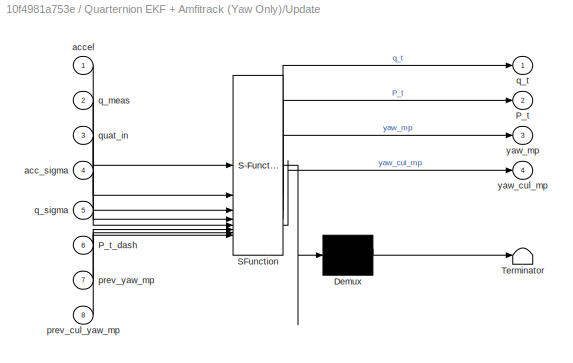
BLOCK [SubSystem] Quarternion EKF + Amfitrack (Yaw Only)/Update
  ErrorFcn = Stateflow.Translate.translate
  PermitHierarchicalResolution = ExplicitOnly
  SFBlockType = MATLAB Function
  SystemSampleTime = delta_t
  TreatAsAtomicUnit = on
BLOCK [Demux] Quarternion EKF + Amfitrack (Yaw Only)/Update/ Demux 
  Outputs = 1
BLOCK [S-Function] Quarternion EKF + Amfitrack (Yaw Only)/Update/ SFunction 
  EnableBusSupport = on
  FunctionName = sf_sfun
  PortCounts = [8 5]
  SFcnIsStateOwnerBlock = off
  SFunctionDeploymentMode = off
  Tag = Stateflow S-Function 35
BLOCK [Terminator] Quarternion EKF + Amfitrack (Yaw Only)/Update/ Terminator 
BLOCK [Outport] Quarternion EKF + Amfitrack (Yaw Only)/Update/P_t
  Port = 2
BLOCK [Inport] Quarternion EKF + Amfitrack (Yaw Only)/Update/P_t_dash
  Port = 6
BLOCK [Inport] Quarternion EKF + Amfitrack (Yaw Only)/Update/acc_sigma
  Port = 4
BLOCK [Inport] Quarternion EKF + Amfitrack (Yaw Only)/Update/accel
BLOCK [Inport] Quarternion EKF + Amfitrack (Yaw Only)/Update/prev_cul_yaw_mp
  Port = 8
BLOCK [Inport] Quarternion EKF + Amfitrack (Yaw Only)/Update/prev_yaw_mp
  Port = 7
BLOCK [Inport] Quarternion EKF + Amfitrack (Yaw Only)/Update/q_meas
  Port = 2
BLOCK [Inport] Quarternion EKF + Amfitrack (Yaw Only)/Update/q_sigma
  Port = 5
BLOCK [Outport] Quarternion EKF + Amfitrack (Yaw Only)/Update/q_t
BLOCK [Inport] Quarternion EKF + Amfitrack (Yaw Only)/Update/quat_in
  Port = 3
BLOCK [Outport] Quarternion EKF + Amfitrack (Yaw Only)/Update/yaw_cul_mp
  Port = 4
BLOCK [Outport] Quarternion EKF + Amfitrack (Yaw Only)/Update/yaw_mp
  Port = 3
BLOCK [Scope] Quarternion EKF + Amfitrack (Yaw Only)/Yaw_mp
  Floating = off
  NumInputPorts = 1
  ScopeSpecificationString = Simulink.scopes.TimeScopeBlockCfg('CurrentConfiguration', extmgr.ConfigurationSet(extmgr.Configuration('Core','General UI',true),extmgr.Configuration('Core','Source UI',true),extmgr.Configuration('Sources','WiredSimulink',true,'DataLoggingVariableName','ScopeData2'),extmgr.Configuration('Visuals','Time Domain',true,'SerializedDisplays',{struct('MinYLimReal','-3.92273','MaxYLimReal','3.92158','YLab...<+1597ch>
BLOCK [Outport] Quarternion EKF + Amfitrack (Yaw Only)/euler_qekf
  Port = 2
BLOCK [SubSystem] Quarternion EKF + Amfitrack (Yaw Only)/normalize_g_b
  ErrorFcn = Stateflow.Translate.translate
  PermitHierarchicalResolution = ExplicitOnly
  SFBlockType = MATLAB Function
  TreatAsAtomicUnit = on
BLOCK [Demux] Quarternion EKF + Amfitrack (Yaw Only)/normalize_g_b/ Demux 
  Outputs = 1
BLOCK [S-Function] Quarternion EKF + Amfitrack (Yaw Only)/normalize_g_b/ SFunction 
  EnableBusSupport = on
  FunctionName = sf_sfun
  PortCounts = [1 2]
  SFcnIsStateOwnerBlock = off
  SFunctionDeploymentMode = off
  Tag = Stateflow S-Function 36
BLOCK [Terminator] Quarternion EKF + Amfitrack (Yaw Only)/normalize_g_b/ Terminator 
BLOCK [Inport] Quarternion EKF + Amfitrack (Yaw Only)/normalize_g_b/v
BLOCK [Outport] Quarternion EKF + Amfitrack (Yaw Only)/normalize_g_b/v_norm
BLOCK [Outport] Quarternion EKF + Amfitrack (Yaw Only)/q
BLOCK [Inport] Quarternion EKF + Amfitrack (Yaw Only)/q_amfitrack
  Port = 3
BLOCK [Reference] Quaternion Normalize  REF=sharedutil/Quaternion
Normalize
  Commented = on
  LibrarySourceBlock = aerolibutil/Quaternion\nNormalize
  NameLocation = right
  SourceBlock = sharedutil/Quaternion\nNormalize
  SourceType = Quaternion Normalize
BLOCK [Reference] RMS1  REF=dspstat3/RMS
  SourceBlock = dspstat3/RMS
  SourceType = RMS
  UserDataPersistent = on
BLOCK [Reference] Radians to Degrees  REF=simulink_extras/Transformations/Radians
to Degrees
  SourceBlock = simulink_extras/Transformations/Radians\nto Degrees
  SourceType = RadiansToDegrees
BLOCK [Reference] Radians to Degrees1  REF=simulink_extras/Transformations/Radians
to Degrees
  SourceBlock = simulink_extras/Transformations/Radians\nto Degrees
  SourceType = RadiansToDegrees
BLOCK [Reference] Radians to Degrees7  REF=simulink_extras/Transformations/Radians
to Degrees
  SourceBlock = simulink_extras/Transformations/Radians\nto Degrees
  SourceType = RadiansToDegrees
BLOCK [RateTransition] Rate Transition
  OutPortSampleTime = delta_t
BLOCK [Constant] Reference
  Value = 90
BLOCK [Reference] Roll+  REF=bbblueActuatorLib/DC Motor
  SourceBlock = bbblueActuatorLib/DC Motor
  SourceType = beagleboneblue.bbblueDCMotor
BLOCK [Reference] Roll-  REF=bbblueActuatorLib/DC Motor
  SourceBlock = bbblueActuatorLib/DC Motor
  SourceType = beagleboneblue.bbblueDCMotor
BLOCK [Saturate] Saturation
  LowerLimit = 0
  UpperLimit = motor_bias + DLADRC_max_effort
BLOCK [Selector] Selector
  IndexOptions = Index vector (dialog)
  Indices = [3]
  InputPortWidth = 3
  OutputSizes = 1
BLOCK [Selector] Selector1
  IndexOptions = Index vector (dialog)
  Indices = [3]
  InputPortWidth = 3
  OutputSizes = 1
BLOCK [Scope] Size
  Floating = off
  NumInputPorts = 1
  ScopeSpecificationString = Simulink.scopes.TimeScopeBlockCfg('CurrentConfiguration', extmgr.ConfigurationSet(extmgr.Configuration('Core','General UI',true),extmgr.Configuration('Core','Source UI',true),extmgr.Configuration('Sources','WiredSimulink',true),extmgr.Configuration('Visuals','Time Domain',true,'SerializedDisplays',{struct('MinYLimReal','-0.5','MaxYLimReal','4.5','YLabelReal','','MinYLimMag','0.00000','MaxYLimMag',...<+1472ch>
BLOCK [Step] Step
  SampleTime = delta_t
  Time = reset_time
BLOCK [Step] Step1
  NameLocation = left
  SampleTime = delta_t
  Time = amfitrack_time
BLOCK [Step] Step2
  NameLocation = left
  SampleTime = delta_t
  Time = amfitrack_time
BLOCK [Step] Step3
  NameLocation = left
  SampleTime = delta_t
  Time = amfitrack_time
BLOCK [Step] Step4
  NameLocation = left
  SampleTime = delta_t
  Time = amfitrack_time
BLOCK [Step] Step5
  NameLocation = left
  SampleTime = delta_t
  Time = amfitrack_time
BLOCK [Step] Step6
  Commented = on
  NameLocation = left
  SampleTime = delta_t
  Time = amfitrack_time
BLOCK [SubSystem] Subsystem
  PortSchema = {"entries":[{"content":{"sides":[{"content":{"connectorIds":["In1","In2","In3","In4","In5","In6","In7","In8","In9","In10","In11","In12"]},"type":"ConnectorPlacement.EquallySpacedRectSide","uuid":"991a5da0-df7a-4ef3-96ef-0456b705c574"},{"content":{"side":"RIGHT"},"type":"ConnectorPlacement.EquallySpacedRectSide","uuid":"461993a6-f70f-45cb-8f04-a275f01d98e3"},{"content":{"side":"TOP"},"type":"Connec...<+431ch>
BLOCK [Inport] Subsystem/Accel
  Port = 4
BLOCK [Inport] Subsystem/AmfitrackEuler
  Port = 7
BLOCK [Inport] Subsystem/Gyro
  Port = 5
BLOCK [Inport] Subsystem/Inbuilt
  Port = 2
BLOCK [Inport] Subsystem/Mag
  Port = 6
BLOCK [Inport] Subsystem/MotorSignals
  Port = 3
BLOCK [Inport] Subsystem/QEKFAOY
BLOCK [Inport] Subsystem/RAW
  Port = 15
BLOCK [Inport] Subsystem/RMSE
  Port = 14
BLOCK [ToFile] Subsystem/To File
  Filename = HENRIK_LOG_CS_QEKF_AOY.mat
BLOCK [ToFile] Subsystem/To File1
  Filename = HENRIK_LOG_CS_Inbuilt.mat
BLOCK [ToFile] Subsystem/To File10
  Filename = HENRIK_LOG_CS_REF.mat
BLOCK [ToFile] Subsystem/To File11
  Filename = HENRIK_LOG_CS_xhat_DLQR.mat
BLOCK [ToFile] Subsystem/To File12
  Filename = HENRIK_LOG_CS_xhatDLQRADRCNOMODEL.mat
BLOCK [ToFile] Subsystem/To File13
  Filename = HENRIK_LOG_CS_xhat_RMSE.mat
BLOCK [ToFile] Subsystem/To File14
  Filename = HENRIK_LOG_CS_RAW.mat
BLOCK [ToFile] Subsystem/To File2
  Filename = HENRIK_LOG_CS_Motor_Signals.mat
BLOCK [ToFile] Subsystem/To File3
  Filename = HENRIK_LOG_CS_Accel.mat
BLOCK [ToFile] Subsystem/To File4
  Filename = HENRIK_LOG_CS_Gyro.mat
BLOCK [ToFile] Subsystem/To File5
  Filename = HENRIK_LOG_CS_Mag.mat
BLOCK [ToFile] Subsystem/To File6
  Filename = HENRIK_LOG_CS_Amfitrack_Euler.mat
BLOCK [ToFile] Subsystem/To File7
  Filename = HENRIK_LOG_CS_xhatADRC.mat
BLOCK [ToFile] Subsystem/To File8
  Filename = HENRIK_LOG_CS_u.mat
BLOCK [ToFile] Subsystem/To File9
  Filename = HENRIK_LOG_CS_xhat_DLQRADRC.mat
BLOCK [Inport] Subsystem/ref
  Port = 11
BLOCK [Inport] Subsystem/u
  Port = 9
BLOCK [Inport] Subsystem/x_hat
  Port = 8
BLOCK [Inport] Subsystem/xhatDLQRADRCNOMODEL
  Port = 13
BLOCK [Inport] Subsystem/xhat_DLQR
  Port = 12
BLOCK [Inport] Subsystem/xhat_DLQRADRC
  Port = 10
BLOCK [Sum] Subtract
  IconShape = rectangular
  Inputs = +-
BLOCK [Switch] Switch
  InputSameDT = off
  SaturateOnIntegerOverflow = off
  Threshold = 4
BLOCK [Terminator] Terminator
BLOCK [Reference] UDP Receive5  REF=bbblueCommlib/UDP Receive
  SourceBlock = bbblueCommlib/UDP Receive
  SourceType = UDP Receive
BLOCK [UnitDelay] Unit Delay
  HasFrameUpgradeWarning = on
  InitialCondition = [1,0,0,0]'
  NameLocation = top
  SampleTime = -1
BLOCK [Scope] Yaw Kf
  Commented = on
  Floating = off
  NumInputPorts = 3
  ScopeSpecificationString = Simulink.scopes.TimeScopeBlockCfg('CurrentConfiguration', extmgr.ConfigurationSet(extmgr.Configuration('Core','General UI',true),extmgr.Configuration('Core','Source UI',true),extmgr.Configuration('Sources','WiredSimulink',true,'DataLoggingVariableName','ScopeData1'),extmgr.Configuration('Visuals','Time Domain',true,'SerializedDisplays',{struct('MinYLimReal','-8.17347','MaxYLimReal','47.32235','YLa...<+1711ch>
BLOCK [SubSystem] Yaw accumulator
  ShowPortLabels = none
BLOCK [Bias] Yaw accumulator/Bias
  SaturateOnIntegerOverflow = off
BLOCK [Constant] Yaw accumulator/Constant4
BLOCK [Constant] Yaw accumulator/Constant5
  Value = 0
BLOCK [Constant] Yaw accumulator/Constant8
BLOCK [Constant] Yaw accumulator/Constant9
  Value = 0
BLOCK [Gain] Yaw accumulator/Gain
  Gain = 360
  NameLocation = right
BLOCK [Gain] Yaw accumulator/Gain3
  Gain = -1
BLOCK [Sum] Yaw accumulator/Sum
  Inputs = |++
BLOCK [Sum] Yaw accumulator/Sum1
  Inputs = |++
BLOCK [Sum] Yaw accumulator/Sum2
  Inputs = |-+
BLOCK [Sum] Yaw accumulator/Sum5
  Inputs = |++
BLOCK [Sum] Yaw accumulator/Sum6
  Inputs = +-|
  NameLocation = right
BLOCK [Switch] Yaw accumulator/Switch
  Criteria = u2 > Threshold
  InputSameDT = off
  SaturateOnIntegerOverflow = off
  Threshold = 180
BLOCK [Switch] Yaw accumulator/Switch1
  Criteria = u2 > Threshold
  InputSameDT = off
  SaturateOnIntegerOverflow = off
  Threshold = 180
BLOCK [UnitDelay] Yaw accumulator/Unit Delay
  HasFrameUpgradeWarning = on
  SampleTime = -1
BLOCK [UnitDelay] Yaw accumulator/Unit Delay1
  HasFrameUpgradeWarning = on
  SampleTime = -1
BLOCK [UnitDelay] Yaw accumulator/Unit Delay3
  HasFrameUpgradeWarning = on
  SampleTime = -1
BLOCK [Inport] Yaw accumulator/yaw
BLOCK [Outport] Yaw accumulator/yaw_acc
BLOCK [SubSystem] Yaw accumulator1
  ShowPortLabels = none
BLOCK [Bias] Yaw accumulator1/Bias
  SaturateOnIntegerOverflow = off
BLOCK [Constant] Yaw accumulator1/Constant4
BLOCK [Constant] Yaw accumulator1/Constant5
  Value = 0
BLOCK [Constant] Yaw accumulator1/Constant8
BLOCK [Constant] Yaw accumulator1/Constant9
  Value = 0
BLOCK [Gain] Yaw accumulator1/Gain
  Gain = 360
  NameLocation = right
BLOCK [Gain] Yaw accumulator1/Gain3
  Gain = -1
BLOCK [Sum] Yaw accumulator1/Sum
  Inputs = |++
BLOCK [Sum] Yaw accumulator1/Sum1
  Inputs = |++
BLOCK [Sum] Yaw accumulator1/Sum2
  Inputs = |-+
BLOCK [Sum] Yaw accumulator1/Sum5
  Inputs = |++
BLOCK [Sum] Yaw accumulator1/Sum6
  Inputs = +-|
  NameLocation = right
BLOCK [Switch] Yaw accumulator1/Switch
  Criteria = u2 > Threshold
  InputSameDT = off
  SaturateOnIntegerOverflow = off
  Threshold = 180
BLOCK [Switch] Yaw accumulator1/Switch1
  Criteria = u2 > Threshold
  InputSameDT = off
  SaturateOnIntegerOverflow = off
  Threshold = 180
BLOCK [UnitDelay] Yaw accumulator1/Unit Delay
  HasFrameUpgradeWarning = on
  SampleTime = -1
BLOCK [UnitDelay] Yaw accumulator1/Unit Delay1
  HasFrameUpgradeWarning = on
  SampleTime = -1
BLOCK [UnitDelay] Yaw accumulator1/Unit Delay3
  HasFrameUpgradeWarning = on
  SampleTime = -1
BLOCK [Inport] Yaw accumulator1/yaw
BLOCK [Outport] Yaw accumulator1/yaw_acc
BLOCK [SubSystem] Yaw accumulator2
  ShowPortLabels = none
BLOCK [Bias] Yaw accumulator2/Bias
  SaturateOnIntegerOverflow = off
BLOCK [Constant] Yaw accumulator2/Constant4
BLOCK [Constant] Yaw accumulator2/Constant5
  Value = 0
BLOCK [Constant] Yaw accumulator2/Constant8
BLOCK [Constant] Yaw accumulator2/Constant9
  Value = 0
BLOCK [Gain] Yaw accumulator2/Gain
  Gain = 360
  NameLocation = right
BLOCK [Gain] Yaw accumulator2/Gain3
  Gain = -1
BLOCK [Sum] Yaw accumulator2/Sum
  Inputs = |++
BLOCK [Sum] Yaw accumulator2/Sum1
  Inputs = |++
BLOCK [Sum] Yaw accumulator2/Sum2
  Inputs = |-+
BLOCK [Sum] Yaw accumulator2/Sum5
  Inputs = |++
BLOCK [Sum] Yaw accumulator2/Sum6
  Inputs = +-|
  NameLocation = right
BLOCK [Switch] Yaw accumulator2/Switch
  Criteria = u2 > Threshold
  InputSameDT = off
  SaturateOnIntegerOverflow = off
  Threshold = 180
BLOCK [Switch] Yaw accumulator2/Switch1
  Criteria = u2 > Threshold
  InputSameDT = off
  SaturateOnIntegerOverflow = off
  Threshold = 180
BLOCK [UnitDelay] Yaw accumulator2/Unit Delay
  HasFrameUpgradeWarning = on
  SampleTime = -1
BLOCK [UnitDelay] Yaw accumulator2/Unit Delay1
  HasFrameUpgradeWarning = on
  SampleTime = -1
BLOCK [UnitDelay] Yaw accumulator2/Unit Delay3
  HasFrameUpgradeWarning = on
  SampleTime = -1
BLOCK [Inport] Yaw accumulator2/yaw
BLOCK [Outport] Yaw accumulator2/yaw_acc
BLOCK [Reference] Yaw+  REF=bbblueActuatorLib/DC Motor
  SourceBlock = bbblueActuatorLib/DC Motor
  SourceType = beagleboneblue.bbblueDCMotor
BLOCK [Reference] Yawk-  REF=bbblueActuatorLib/DC Motor
  SourceBlock = bbblueActuatorLib/DC Motor
  SourceType = beagleboneblue.bbblueDCMotor
ANNOTATION (root): Amfitrack
ANNOTATION (root): Control
ANNOTATION (root): Logging
ANNOTATION (root): Logging Only
ANNOTATION (root): Motor Interface
ANNOTATION (root): Performance Evaluation
ANNOTATION (root): Sensor Fusion
ANNOTATION DLQR (Considering Simplified Model): Discrete Observer
ANNOTATION Discrete + ADRC_State_Space+LQR (No model): Discrete ESO
ANNOTATION Discrete + ADRC_State_Space+Model+LQR: Discrete MESO
ANNOTATION Discrete LADRC for Yaw (Bandwidth): Discrete ESO
LINE ADRC||Plain:1 -> Bandwidth||LQR:2
LINE Account for Propeller Directio Yaw:1 -> Yaw+:1
LINE Account for Propeller Direction Roll:1 -> Roll-:1
NET Accumulator/MATLAB Function:1 -> Accumulator/Unit Delay2:1, Accumulator/u_cul:1
LINE Accumulator/Unit Delay1:1 -> Accumulator/MATLAB Function:2
LINE Accumulator/Unit Delay2:1 -> Accumulator/MATLAB Function:3
NET Accumulator/u:1 -> Accumulator/MATLAB Function:1, Accumulator/Unit Delay1:1
LINE Angles from Accel + Mag/Accelerometer:1 -> Angles from Accel + Mag/Demux:1
LINE Angles from Accel + Mag/Demux2:1 -> Angles from Accel + Mag/MATLAB Function2:3
LINE Angles from Accel + Mag/Demux2:2 -> Angles from Accel + Mag/MATLAB Function2:4
LINE Angles from Accel + Mag/Demux2:3 -> Angles from Accel + Mag/MATLAB Function2:5
LINE Angles from Accel + Mag/Demux:1 -> Angles from Accel + Mag/MATLAB Function1:1
NET Angles from Accel + Mag/Demux:2 -> Angles from Accel + Mag/MATLAB Function1:2, Angles from Accel + Mag/MATLAB Function:1
NET Angles from Accel + Mag/Demux:3 -> Angles from Accel + Mag/MATLAB Function1:3, Angles from Accel + Mag/MATLAB Function:2
NET Angles from Accel + Mag/MATLAB Function1:1 -> Angles from Accel + Mag/MATLAB Function2:2, Angles from Accel + Mag/Mux:2
LINE Angles from Accel + Mag/MATLAB Function2:1 -> Angles from Accel + Mag/Mux:3
NET Angles from Accel + Mag/MATLAB Function:1 -> Angles from Accel + Mag/MATLAB Function1:4, Angles from Accel + Mag/MATLAB Function2:1, Angles from Accel + Mag/Mux:1
LINE Angles from Accel + Mag/Magnetometer:1 -> Angles from Accel + Mag/Demux2:1
LINE Angles from Accel + Mag/Mux:1 -> Angles from Accel + Mag/roll,pitch,yaw:1
LINE Angles from Accel + Mag:1 -> Radians to Degrees1:1
NET Bandwidth||LQR:1 -> Controller Motor Commands:1, Goto10:1, Motor Mixing:1
NET Choose Feedback Source:1 -> DLQR (Considering Simplified Model):2, Discrete + ADRC_State_Space+LQR (No model):2, Discrete + ADRC_State_Space+Model+LQR:2, Discrete LADRC for Yaw (Bandwidth):2, Goto13:1
LINE Choose Ref:1 -> Rate Transition:1
LINE DLQR (Considering Simplified Model)/Delay:1 -> DLQR (Considering Simplified Model)/Sum9:1
LINE DLQR (Considering Simplified Model)/From1:1 -> DLQR (Considering Simplified Model)/DLQR:2
LINE DLQR (Considering Simplified Model)/From2:1 -> DLQR (Considering Simplified Model)/DLQR:3
LINE DLQR (Considering Simplified Model)/From3:1 -> DLQR (Considering Simplified Model)/DLQR:4
LINE DLQR (Considering Simplified Model)/From:1 -> DLQR (Considering Simplified Model)/DLQR:1
LINE DLQR (Considering Simplified Model)/Gain4:1 -> DLQR (Considering Simplified Model)/Sum1:2
LINE DLQR (Considering Simplified Model)/Gain5:1 -> DLQR (Considering Simplified Model)/Sum1:1
LINE DLQR (Considering Simplified Model)/Gain6:1 -> DLQR (Considering Simplified Model)/Sum9:2
LINE DLQR (Considering Simplified Model)/Gain7:1 -> DLQR (Considering Simplified Model)/Sum8:1
LINE DLQR (Considering Simplified Model)/Gain8:1 -> DLQR (Considering Simplified Model)/Sum8:2
NET DLQR (Considering Simplified Model)/Limiter:1 -> DLQR (Considering Simplified Model)/Gain7:1, DLQR (Considering Simplified Model)/Goto2:1, DLQR (Considering Simplified Model)/u:1
LINE DLQR (Considering Simplified Model)/MATLAB Function:1 -> DLQR (Considering Simplified Model)/Delay:2
LINE DLQR (Considering Simplified Model)/Sum1:1 -> DLQR (Considering Simplified Model)/Limiter:1
LINE DLQR (Considering Simplified Model)/Sum8:1 -> DLQR (Considering Simplified Model)/Delay:1
NET DLQR (Considering Simplified Model)/Sum9:1 -> DLQR (Considering Simplified Model)/Gain4:1, DLQR (Considering Simplified Model)/Gain8:1, DLQR (Considering Simplified Model)/Goto3:1, DLQR (Considering Simplified Model)/x_hat:1
NET DLQR (Considering Simplified Model)/ref:1 -> DLQR (Considering Simplified Model)/Gain5:1, DLQR (Considering Simplified Model)/Goto:1
NET DLQR (Considering Simplified Model)/y:1 -> DLQR (Considering Simplified Model)/Gain6:1, DLQR (Considering Simplified Model)/Goto1:1, DLQR (Considering Simplified Model)/MATLAB Function:1
LINE DLQR (Considering Simplified Model):1 -> ADRC||Plain:2
LINE DLQR (Considering Simplified Model):2 -> Goto15:1
LINE Data Type Conversion1:1 -> Account for Propeller Direction Roll:1
LINE Data Type Conversion2:1 -> Account for Propeller Directio Yaw:1
LINE Data Type Conversion3:1 -> Yawk-:1
LINE Data Type Conversion4:1 -> Roll+:1
LINE Demux:1 -> Data Type Conversion2:1
LINE Demux:2 -> Data Type Conversion1:1
LINE Demux:3 -> Data Type Conversion4:1
LINE Demux:4 -> Data Type Conversion3:1
LINE Discrete + ADRC_State_Space+LQR (No model)/Delay:1 -> Discrete + ADRC_State_Space+LQR (No model)/Sum9:1
LINE Discrete + ADRC_State_Space+LQR (No model)/Demux1:1 -> Discrete + ADRC_State_Space+LQR (No model)/Mux1:1
LINE Discrete + ADRC_State_Space+LQR (No model)/Demux1:2 -> Discrete + ADRC_State_Space+LQR (No model)/Mux1:2
LINE Discrete + ADRC_State_Space+LQR (No model)/Demux1:3 -> Discrete + ADRC_State_Space+LQR (No model)/Gain2:1
LINE Discrete + ADRC_State_Space+LQR (No model)/From1:1 -> Discrete + ADRC_State_Space+LQR (No model)/LQRADRC+NoModel:2
LINE Discrete + ADRC_State_Space+LQR (No model)/From2:1 -> Discrete + ADRC_State_Space+LQR (No model)/LQRADRC+NoModel:3
LINE Discrete + ADRC_State_Space+LQR (No model)/From3:1 -> Discrete + ADRC_State_Space+LQR (No model)/LQRADRC+NoModel:4
LINE Discrete + ADRC_State_Space+LQR (No model)/From:1 -> Discrete + ADRC_State_Space+LQR (No model)/LQRADRC+NoModel:1
LINE Discrete + ADRC_State_Space+LQR (No model)/Gain2:1 -> Discrete + ADRC_State_Space+LQR (No model)/Sum2:2
LINE Discrete + ADRC_State_Space+LQR (No model)/Gain4:1 -> Discrete + ADRC_State_Space+LQR (No model)/Sum1:2
LINE Discrete + ADRC_State_Space+LQR (No model)/Gain5:1 -> Discrete + ADRC_State_Space+LQR (No model)/Sum2:1
LINE Discrete + ADRC_State_Space+LQR (No model)/Gain6:1 -> Discrete + ADRC_State_Space+LQR (No model)/Sum9:2
LINE Discrete + ADRC_State_Space+LQR (No model)/Gain7:1 -> Discrete + ADRC_State_Space+LQR (No model)/Sum8:1
LINE Discrete + ADRC_State_Space+LQR (No model)/Gain8:1 -> Discrete + ADRC_State_Space+LQR (No model)/Sum8:2
NET Discrete + ADRC_State_Space+LQR (No model)/Limiter:1 -> Discrete + ADRC_State_Space+LQR (No model)/Gain7:1, Discrete + ADRC_State_Space+LQR (No model)/Goto2:1, Discrete + ADRC_State_Space+LQR (No model)/u:1
LINE Discrete + ADRC_State_Space+LQR (No model)/MATLAB Function:1 -> Discrete + ADRC_State_Space+LQR (No model)/Delay:2
LINE Discrete + ADRC_State_Space+LQR (No model)/Mux1:1 -> Discrete + ADRC_State_Space+LQR (No model)/Gain4:1
LINE Discrete + ADRC_State_Space+LQR (No model)/Sum1:1 -> Discrete + ADRC_State_Space+LQR (No model)/Limiter:1
LINE Discrete + ADRC_State_Space+LQR (No model)/Sum2:1 -> Discrete + ADRC_State_Space+LQR (No model)/Sum1:1
LINE Discrete + ADRC_State_Space+LQR (No model)/Sum8:1 -> Discrete + ADRC_State_Space+LQR (No model)/Delay:1
NET Discrete + ADRC_State_Space+LQR (No model)/Sum9:1 -> Discrete + ADRC_State_Space+LQR (No model)/Demux1:1, Discrete + ADRC_State_Space+LQR (No model)/ESO - out:1, Discrete + ADRC_State_Space+LQR (No model)/Gain8:1, Discrete + ADRC_State_Space+LQR (No model)/Goto3:1
NET Discrete + ADRC_State_Space+LQR (No model)/ref:1 -> Discrete + ADRC_State_Space+LQR (No model)/Gain5:1, Discrete + ADRC_State_Space+LQR (No model)/Goto:1
NET Discrete + ADRC_State_Space+LQR (No model)/y:1 -> Discrete + ADRC_State_Space+LQR (No model)/Gain6:1, Discrete + ADRC_State_Space+LQR (No model)/Goto1:1, Discrete + ADRC_State_Space+LQR (No model)/MATLAB Function:1
LINE Discrete + ADRC_State_Space+LQR (No model):1 -> No Model||Model:1
LINE Discrete + ADRC_State_Space+LQR (No model):2 -> Goto16:1
LINE Discrete + ADRC_State_Space+Model+LQR/Delay:1 -> Discrete + ADRC_State_Space+Model+LQR/Sum9:1
LINE Discrete + ADRC_State_Space+Model+LQR/Demux1:1 -> Discrete + ADRC_State_Space+Model+LQR/Mux1:1
LINE Discrete + ADRC_State_Space+Model+LQR/Demux1:2 -> Discrete + ADRC_State_Space+Model+LQR/Mux1:2
LINE Discrete + ADRC_State_Space+Model+LQR/Demux1:3 -> Discrete + ADRC_State_Space+Model+LQR/Gain2:1
LINE Discrete + ADRC_State_Space+Model+LQR/From1:1 -> Discrete + ADRC_State_Space+Model+LQR/ADRC+Model:2
LINE Discrete + ADRC_State_Space+Model+LQR/From2:1 -> Discrete + ADRC_State_Space+Model+LQR/ADRC+Model:3
LINE Discrete + ADRC_State_Space+Model+LQR/From3:1 -> Discrete + ADRC_State_Space+Model+LQR/ADRC+Model:4
LINE Discrete + ADRC_State_Space+Model+LQR/From:1 -> Discrete + ADRC_State_Space+Model+LQR/ADRC+Model:1
LINE Discrete + ADRC_State_Space+Model+LQR/Gain2:1 -> Discrete + ADRC_State_Space+Model+LQR/Sum2:2
LINE Discrete + ADRC_State_Space+Model+LQR/Gain4:1 -> Discrete + ADRC_State_Space+Model+LQR/Sum1:2
LINE Discrete + ADRC_State_Space+Model+LQR/Gain5:1 -> Discrete + ADRC_State_Space+Model+LQR/Sum2:1
LINE Discrete + ADRC_State_Space+Model+LQR/Gain6:1 -> Discrete + ADRC_State_Space+Model+LQR/Sum9:2
LINE Discrete + ADRC_State_Space+Model+LQR/Gain7:1 -> Discrete + ADRC_State_Space+Model+LQR/Sum8:1
LINE Discrete + ADRC_State_Space+Model+LQR/Gain8:1 -> Discrete + ADRC_State_Space+Model+LQR/Sum8:2
NET Discrete + ADRC_State_Space+Model+LQR/Limiter:1 -> Discrete + ADRC_State_Space+Model+LQR/Gain7:1, Discrete + ADRC_State_Space+Model+LQR/Goto2:1, Discrete + ADRC_State_Space+Model+LQR/u:1
LINE Discrete + ADRC_State_Space+Model+LQR/MATLAB Function:1 -> Discrete + ADRC_State_Space+Model+LQR/Delay:2
LINE Discrete + ADRC_State_Space+Model+LQR/Mux1:1 -> Discrete + ADRC_State_Space+Model+LQR/Gain4:1
LINE Discrete + ADRC_State_Space+Model+LQR/Sum1:1 -> Discrete + ADRC_State_Space+Model+LQR/Limiter:1
LINE Discrete + ADRC_State_Space+Model+LQR/Sum2:1 -> Discrete + ADRC_State_Space+Model+LQR/Sum1:1
LINE Discrete + ADRC_State_Space+Model+LQR/Sum8:1 -> Discrete + ADRC_State_Space+Model+LQR/Delay:1
NET Discrete + ADRC_State_Space+Model+LQR/Sum9:1 -> Discrete + ADRC_State_Space+Model+LQR/Demux1:1, Discrete + ADRC_State_Space+Model+LQR/ESO+M - out:1, Discrete + ADRC_State_Space+Model+LQR/Gain8:1, Discrete + ADRC_State_Space+Model+LQR/Goto3:1
NET Discrete + ADRC_State_Space+Model+LQR/ref:1 -> Discrete + ADRC_State_Space+Model+LQR/Gain5:1, Discrete + ADRC_State_Space+Model+LQR/Goto:1
NET Discrete + ADRC_State_Space+Model+LQR/y:1 -> Discrete + ADRC_State_Space+Model+LQR/Gain6:1, Discrete + ADRC_State_Space+Model+LQR/Goto1:1, Discrete + ADRC_State_Space+Model+LQR/MATLAB Function:1
LINE Discrete + ADRC_State_Space+Model+LQR:1 -> No Model||Model:2
LINE Discrete + ADRC_State_Space+Model+LQR:2 -> Goto11:1
LINE Discrete LADRC for Yaw (Bandwidth)/Delay:1 -> Discrete LADRC for Yaw (Bandwidth)/Sum9:1
LINE Discrete LADRC for Yaw (Bandwidth)/Gain1:1 -> Discrete LADRC for Yaw (Bandwidth)/Sum8:1
LINE Discrete LADRC for Yaw (Bandwidth)/Gain2:1 -> Discrete LADRC for Yaw (Bandwidth)/Sum8:2
LINE Discrete LADRC for Yaw (Bandwidth)/Gain3:1 -> Discrete LADRC for Yaw (Bandwidth)/Sum:1
LINE Discrete LADRC for Yaw (Bandwidth)/Gain4:1 -> Discrete LADRC for Yaw (Bandwidth)/Limiter:1
LINE Discrete LADRC for Yaw (Bandwidth)/Gain5:1 -> Discrete LADRC for Yaw (Bandwidth)/Sum:2
LINE Discrete LADRC for Yaw (Bandwidth)/Gain:1 -> Discrete LADRC for Yaw (Bandwidth)/Sum9:2
NET Discrete LADRC for Yaw (Bandwidth)/Limiter:1 -> Discrete LADRC for Yaw (Bandwidth)/Gain1:1, Discrete LADRC for Yaw (Bandwidth)/u:1
LINE Discrete LADRC for Yaw (Bandwidth)/MATLAB Function:1 -> Discrete LADRC for Yaw (Bandwidth)/Delay:2
LINE Discrete LADRC for Yaw (Bandwidth)/Sum8:1 -> Discrete LADRC for Yaw (Bandwidth)/Delay:1
NET Discrete LADRC for Yaw (Bandwidth)/Sum9:1 -> Discrete LADRC for Yaw (Bandwidth)/Gain2:1, Discrete LADRC for Yaw (Bandwidth)/Gain5:1, Discrete LADRC for Yaw (Bandwidth)/x_hat:1
LINE Discrete LADRC for Yaw (Bandwidth)/Sum:1 -> Discrete LADRC for Yaw (Bandwidth)/Gain4:1
LINE Discrete LADRC for Yaw (Bandwidth)/ref:1 -> Discrete LADRC for Yaw (Bandwidth)/Gain3:1
NET Discrete LADRC for Yaw (Bandwidth)/y:1 -> Discrete LADRC for Yaw (Bandwidth)/Gain:1, Discrete LADRC for Yaw (Bandwidth)/MATLAB Function:1
LINE Discrete LADRC for Yaw (Bandwidth):1 -> Bandwidth||LQR:1
LINE Discrete LADRC for Yaw (Bandwidth):2 -> Goto9:1
NET Enable Control:1 -> Goto8:1, Saturation:1
LINE From10:1 -> Subsystem:5
LINE From11:1 -> Subsystem:4
LINE From12:1 -> Selector:1
LINE From13:1 -> Logging-Vis:1
LINE From14:1 -> Subsystem:7
LINE From15:1 -> Selector1:1
LINE From16:1 -> Enable Control:1
LINE From17:1 -> Subsystem:8
LINE From18:1 -> Subsystem:9
LINE From19:1 -> Subsystem:10
LINE From1:1 -> Logging-Vis:3
LINE From20:1 -> Subsystem:11
LINE From21:1 -> Subtract:1
LINE From22:1 -> Subtract:2
LINE From23:1 -> Logging-Vis:5
LINE From24:1 -> Subsystem:12
LINE From25:1 -> Logging-Vis:6
LINE From26:1 -> Subsystem:13
LINE From27:1 -> Subsystem:14
LINE From28:1 -> Angles from Accel + Mag:1
LINE From29:1 -> Angles from Accel + Mag:2
LINE From2:1 -> Logging-Vis:4
LINE From30:1 -> Subsystem:15
LINE From31:1 -> Logging-Vis:7
LINE From32:1 -> Leightweight-Kalman:2
LINE From33:1 -> Yaw Kf:2
LINE From34:1 -> Leightweight-Kalman:1
LINE From35:1 -> Yaw Kf:3
LINE From3:1 -> Logging-Vis:2
LINE From4:1 -> Subsystem:1
LINE From5:1 -> Subsystem:3
LINE From6:1 -> Subsystem:2
LINE From7:1 -> Quarternion EKF + Amfitrack (Yaw Only):1
LINE From8:1 -> Quarternion EKF + Amfitrack (Yaw Only):2
LINE From9:1 -> Subsystem:6
LINE From:1 -> Quarternion EKF + Amfitrack (Yaw Only):3
LINE Leightweight-Kalman/Gyro:1 -> Leightweight-Kalman/Selector2:1
LINE Leightweight-Kalman/Initialize KF:1 -> Leightweight-Kalman/MATLAB Function2:1
LINE Leightweight-Kalman/Kalman Filter:1 -> Leightweight-Kalman/yaw_kf:1
LINE Leightweight-Kalman/MATLAB Function1:1 -> Leightweight-Kalman/Radians to Degrees7:1
LINE Leightweight-Kalman/MATLAB Function2:1 -> Leightweight-Kalman/Radians to Degrees1:1
LINE Leightweight-Kalman/Mux1:1 -> Leightweight-Kalman/Kalman Filter:1
LINE Leightweight-Kalman/Mux:1 -> Leightweight-Kalman/Kalman Filter:2
LINE Leightweight-Kalman/Radians to Degrees1:1 -> Leightweight-Kalman/Selector1:1
LINE Leightweight-Kalman/Radians to Degrees7:1 -> Leightweight-Kalman/Selector:1
LINE Leightweight-Kalman/Selector1:1 -> Leightweight-Kalman/Mux:1
NET Leightweight-Kalman/Selector2:1 -> Leightweight-Kalman/Mux1:2, Leightweight-Kalman/Mux:2
LINE Leightweight-Kalman/Selector:1 -> Leightweight-Kalman/Yaw accumulator1:1
NET Leightweight-Kalman/Yaw accumulator1/Bias:1 -> Leightweight-Kalman/Yaw accumulator1/Sum2:1, Leightweight-Kalman/Yaw accumulator1/Sum:1, Leightweight-Kalman/Yaw accumulator1/Unit Delay1:1
LINE Leightweight-Kalman/Yaw accumulator1/Constant4:1 -> Leightweight-Kalman/Yaw accumulator1/Switch:1
LINE Leightweight-Kalman/Yaw accumulator1/Constant5:1 -> Leightweight-Kalman/Yaw accumulator1/Switch:3
LINE Leightweight-Kalman/Yaw accumulator1/Constant8:1 -> Leightweight-Kalman/Yaw accumulator1/Switch1:1
LINE Leightweight-Kalman/Yaw accumulator1/Constant9:1 -> Leightweight-Kalman/Yaw accumulator1/Switch1:3
LINE Leightweight-Kalman/Yaw accumulator1/Gain3:1 -> Leightweight-Kalman/Yaw accumulator1/Switch1:2
LINE Leightweight-Kalman/Yaw accumulator1/Gain:1 -> Leightweight-Kalman/Yaw accumulator1/Sum:2
NET Leightweight-Kalman/Yaw accumulator1/Sum1:1 -> Leightweight-Kalman/Yaw accumulator1/Sum6:1, Leightweight-Kalman/Yaw accumulator1/Unit Delay:1
NET Leightweight-Kalman/Yaw accumulator1/Sum2:1 -> Leightweight-Kalman/Yaw accumulator1/Gain3:1, Leightweight-Kalman/Yaw accumulator1/Switch:2
NET Leightweight-Kalman/Yaw accumulator1/Sum5:1 -> Leightweight-Kalman/Yaw accumulator1/Sum6:2, Leightweight-Kalman/Yaw accumulator1/Unit Delay3:1
LINE Leightweight-Kalman/Yaw accumulator1/Sum6:1 -> Leightweight-Kalman/Yaw accumulator1/Gain:1
LINE Leightweight-Kalman/Yaw accumulator1/Sum:1 -> Leightweight-Kalman/Yaw accumulator1/yaw_acc:1
LINE Leightweight-Kalman/Yaw accumulator1/Switch1:1 -> Leightweight-Kalman/Yaw accumulator1/Sum5:1
LINE Leightweight-Kalman/Yaw accumulator1/Switch:1 -> Leightweight-Kalman/Yaw accumulator1/Sum1:1
LINE Leightweight-Kalman/Yaw accumulator1/Unit Delay1:1 -> Leightweight-Kalman/Yaw accumulator1/Sum2:2
LINE Leightweight-Kalman/Yaw accumulator1/Unit Delay3:1 -> Leightweight-Kalman/Yaw accumulator1/Sum5:2
LINE Leightweight-Kalman/Yaw accumulator1/Unit Delay:1 -> Leightweight-Kalman/Yaw accumulator1/Sum1:2
LINE Leightweight-Kalman/Yaw accumulator1/yaw:1 -> Leightweight-Kalman/Yaw accumulator1/Bias:1
LINE Leightweight-Kalman/Yaw accumulator1:1 -> Leightweight-Kalman/Mux1:1
NET Leightweight-Kalman/q_amfitrack:1 -> Leightweight-Kalman/Initialize KF:1, Leightweight-Kalman/MATLAB Function1:1
LINE Leightweight-Kalman:1 -> Yaw Kf:1
LINE MATLAB Function1:1 -> Radians to Degrees7:1
LINE MPU9250:1 -> Goto4:1
LINE MPU9250:2 -> Goto5:1
LINE MPU9250:3 -> Goto6:1
LINE MPU9250:4 -> Yaw accumulator1:1
LINE Manual Motor Commands:1 -> Enable Control:2
LINE Motor Mixing/Abs:1 -> Motor Mixing/Bias1:1
LINE Motor Mixing/Bias1:1 -> Motor Mixing/Mux:4
LINE Motor Mixing/Bias:1 -> Motor Mixing/Mux:1
LINE Motor Mixing/Constant1:1 -> Motor Mixing/Mux:3
LINE Motor Mixing/Constant:1 -> Motor Mixing/Mux:2
NET Motor Mixing/Desired Yaw Control Signal:1 -> Motor Mixing/If negative:1, Motor Mixing/If positive:1
LINE Motor Mixing/If negative:1 -> Motor Mixing/Abs:1
LINE Motor Mixing/If positive:1 -> Motor Mixing/Bias:1
LINE Motor Mixing/Mux:1 -> Motor Mixing/Motor Commands:1
NET Motor Mixing:1 -> Controller Motor Commands:2, Goto2:1
LINE No Model||Model:1 -> ADRC||Plain:1
LINE Pulse Generator:1 -> Choose Ref:2
LINE Quarternion EKF + Amfitrack (Yaw Only)/Accel:1 -> Quarternion EKF + Amfitrack (Yaw Only)/normalize_g_b:1
LINE Quarternion EKF + Amfitrack (Yaw Only)/Constant1:1 -> Quarternion EKF + Amfitrack (Yaw Only)/Predict:5
LINE Quarternion EKF + Amfitrack (Yaw Only)/Constant2:1 -> Quarternion EKF + Amfitrack (Yaw Only)/Update:5
LINE Quarternion EKF + Amfitrack (Yaw Only)/Constant3:1 -> Quarternion EKF + Amfitrack (Yaw Only)/Update:4
LINE Quarternion EKF + Amfitrack (Yaw Only)/Constant:1 -> Quarternion EKF + Amfitrack (Yaw Only)/Predict:3
LINE Quarternion EKF + Amfitrack (Yaw Only)/Degrees to Radians:1 -> Quarternion EKF + Amfitrack (Yaw Only)/Predict:2
LINE Quarternion EKF + Amfitrack (Yaw Only)/Delay1:1 -> Quarternion EKF + Amfitrack (Yaw Only)/Update:7
LINE Quarternion EKF + Amfitrack (Yaw Only)/Delay2:1 -> Quarternion EKF + Amfitrack (Yaw Only)/Update:8
LINE Quarternion EKF + Amfitrack (Yaw Only)/Delay:1 -> Quarternion EKF + Amfitrack (Yaw Only)/Predict:1
LINE Quarternion EKF + Amfitrack (Yaw Only)/From:1 -> Quarternion EKF + Amfitrack (Yaw Only)/Delay:2
LINE Quarternion EKF + Amfitrack (Yaw Only)/Gyro:1 -> Quarternion EKF + Amfitrack (Yaw Only)/Degrees to Radians:1
LINE Quarternion EKF + Amfitrack (Yaw Only)/Initialize QEKF_AOY:1 -> Quarternion EKF + Amfitrack (Yaw Only)/Goto:1
LINE Quarternion EKF + Amfitrack (Yaw Only)/MATLAB Function:1 -> Quarternion EKF + Amfitrack (Yaw Only)/euler_qekf:1
LINE Quarternion EKF + Amfitrack (Yaw Only)/Predict:1 -> Quarternion EKF + Amfitrack (Yaw Only)/Update:3
LINE Quarternion EKF + Amfitrack (Yaw Only)/Predict:2 -> Quarternion EKF + Amfitrack (Yaw Only)/Update:6
LINE Quarternion EKF + Amfitrack (Yaw Only)/Unit Delay1:1 -> Quarternion EKF + Amfitrack (Yaw Only)/Predict:4
NET Quarternion EKF + Amfitrack (Yaw Only)/Update:1 -> Quarternion EKF + Amfitrack (Yaw Only)/Delay:1, Quarternion EKF + Amfitrack (Yaw Only)/MATLAB Function:1, Quarternion EKF + Amfitrack (Yaw Only)/q:1
LINE Quarternion EKF + Amfitrack (Yaw Only)/Update:2 -> Quarternion EKF + Amfitrack (Yaw Only)/Unit Delay1:1
NET Quarternion EKF + Amfitrack (Yaw Only)/Update:3 -> Quarternion EKF + Amfitrack (Yaw Only)/Delay1:1, Quarternion EKF + Amfitrack (Yaw Only)/Yaw_mp:1
NET Quarternion EKF + Amfitrack (Yaw Only)/Update:4 -> Quarternion EKF + Amfitrack (Yaw Only)/Cumulative Yaw mp:1, Quarternion EKF + Amfitrack (Yaw Only)/Delay2:1
LINE Quarternion EKF + Amfitrack (Yaw Only)/normalize_g_b:1 -> Quarternion EKF + Amfitrack (Yaw Only)/Update:1
NET Quarternion EKF + Amfitrack (Yaw Only)/q_amfitrack:1 -> Quarternion EKF + Amfitrack (Yaw Only)/Initialize QEKF_AOY:1, Quarternion EKF + Amfitrack (Yaw Only)/Update:2
LINE Quarternion EKF + Amfitrack (Yaw Only):1 -> Terminator:1
LINE Quarternion EKF + Amfitrack (Yaw Only):2 -> Radians to Degrees:1
LINE RMS1:1 -> Goto14:1
LINE Radians to Degrees1:1 -> Yaw accumulator2:1
NET Radians to Degrees7:1 -> Amfitrack Euler:1, Goto7:1
LINE Radians to Degrees:1 -> Yaw accumulator:1
NET Rate Transition:1 -> DLQR (Considering Simplified Model):1, Discrete + ADRC_State_Space+LQR (No model):1, Discrete + ADRC_State_Space+Model+LQR:1, Discrete LADRC for Yaw (Bandwidth):1, Goto12:1
LINE Reference:1 -> Choose Ref:1
LINE Saturation:1 -> Demux:1
LINE Selector1:1 -> Choose Feedback Source:1
LINE Selector:1 -> Choose Feedback Source:2
LINE Step1:1 -> Quarternion EKF + Amfitrack (Yaw Only):enable
LINE Step2:1 -> Discrete LADRC for Yaw (Bandwidth):enable
LINE Step3:1 -> Discrete + ADRC_State_Space+LQR (No model):enable
LINE Step4:1 -> Discrete + ADRC_State_Space+Model+LQR:enable
LINE Step5:1 -> DLQR (Considering Simplified Model):enable
LINE Step6:1 -> Leightweight-Kalman:enable
LINE Step:1 -> RMS1:2
LINE Subsystem/Accel:1 -> Subsystem/To File3:1
LINE Subsystem/AmfitrackEuler:1 -> Subsystem/To File6:1
LINE Subsystem/Gyro:1 -> Subsystem/To File4:1
LINE Subsystem/Inbuilt:1 -> Subsystem/To File1:1
LINE Subsystem/Mag:1 -> Subsystem/To File5:1
LINE Subsystem/MotorSignals:1 -> Subsystem/To File2:1
LINE Subsystem/QEKFAOY:1 -> Subsystem/To File:1
LINE Subsystem/RAW:1 -> Subsystem/To File14:1
LINE Subsystem/RMSE:1 -> Subsystem/To File13:1
LINE Subsystem/ref:1 -> Subsystem/To File10:1
LINE Subsystem/u:1 -> Subsystem/To File8:1
LINE Subsystem/x_hat:1 -> Subsystem/To File7:1
LINE Subsystem/xhatDLQRADRCNOMODEL:1 -> Subsystem/To File12:1
LINE Subsystem/xhat_DLQR:1 -> Subsystem/To File11:1
LINE Subsystem/xhat_DLQRADRC:1 -> Subsystem/To File9:1
LINE Subtract:1 -> RMS1:1
NET Switch:1 -> Goto:1, MATLAB Function1:1, Unit Delay:1
NET UDP Receive5:1 -> Data:1, Switch:1
NET UDP Receive5:2 -> Size:1, Switch:2
LINE Unit Delay:1 -> Switch:3
NET Yaw accumulator/Bias:1 -> Yaw accumulator/Sum2:1, Yaw accumulator/Sum:1, Yaw accumulator/Unit Delay1:1
LINE Yaw accumulator/Constant4:1 -> Yaw accumulator/Switch:1
LINE Yaw accumulator/Constant5:1 -> Yaw accumulator/Switch:3
LINE Yaw accumulator/Constant8:1 -> Yaw accumulator/Switch1:1
LINE Yaw accumulator/Constant9:1 -> Yaw accumulator/Switch1:3
LINE Yaw accumulator/Gain3:1 -> Yaw accumulator/Switch1:2
LINE Yaw accumulator/Gain:1 -> Yaw accumulator/Sum:2
NET Yaw accumulator/Sum1:1 -> Yaw accumulator/Sum6:1, Yaw accumulator/Unit Delay:1
NET Yaw accumulator/Sum2:1 -> Yaw accumulator/Gain3:1, Yaw accumulator/Switch:2
NET Yaw accumulator/Sum5:1 -> Yaw accumulator/Sum6:2, Yaw accumulator/Unit Delay3:1
LINE Yaw accumulator/Sum6:1 -> Yaw accumulator/Gain:1
LINE Yaw accumulator/Sum:1 -> Yaw accumulator/yaw_acc:1
LINE Yaw accumulator/Switch1:1 -> Yaw accumulator/Sum5:1
LINE Yaw accumulator/Switch:1 -> Yaw accumulator/Sum1:1
LINE Yaw accumulator/Unit Delay1:1 -> Yaw accumulator/Sum2:2
LINE Yaw accumulator/Unit Delay3:1 -> Yaw accumulator/Sum5:2
LINE Yaw accumulator/Unit Delay:1 -> Yaw accumulator/Sum1:2
LINE Yaw accumulator/yaw:1 -> Yaw accumulator/Bias:1
NET Yaw accumulator1/Bias:1 -> Yaw accumulator1/Sum2:1, Yaw accumulator1/Sum:1, Yaw accumulator1/Unit Delay1:1
LINE Yaw accumulator1/Constant4:1 -> Yaw accumulator1/Switch:1
LINE Yaw accumulator1/Constant5:1 -> Yaw accumulator1/Switch:3
LINE Yaw accumulator1/Constant8:1 -> Yaw accumulator1/Switch1:1
LINE Yaw accumulator1/Constant9:1 -> Yaw accumulator1/Switch1:3
LINE Yaw accumulator1/Gain3:1 -> Yaw accumulator1/Switch1:2
LINE Yaw accumulator1/Gain:1 -> Yaw accumulator1/Sum:2
NET Yaw accumulator1/Sum1:1 -> Yaw accumulator1/Sum6:1, Yaw accumulator1/Unit Delay:1
NET Yaw accumulator1/Sum2:1 -> Yaw accumulator1/Gain3:1, Yaw accumulator1/Switch:2
NET Yaw accumulator1/Sum5:1 -> Yaw accumulator1/Sum6:2, Yaw accumulator1/Unit Delay3:1
LINE Yaw accumulator1/Sum6:1 -> Yaw accumulator1/Gain:1
LINE Yaw accumulator1/Sum:1 -> Yaw accumulator1/yaw_acc:1
LINE Yaw accumulator1/Switch1:1 -> Yaw accumulator1/Sum5:1
LINE Yaw accumulator1/Switch:1 -> Yaw accumulator1/Sum1:1
LINE Yaw accumulator1/Unit Delay1:1 -> Yaw accumulator1/Sum2:2
LINE Yaw accumulator1/Unit Delay3:1 -> Yaw accumulator1/Sum5:2
LINE Yaw accumulator1/Unit Delay:1 -> Yaw accumulator1/Sum1:2
LINE Yaw accumulator1/yaw:1 -> Yaw accumulator1/Bias:1
LINE Yaw accumulator1:1 -> Goto1:1
NET Yaw accumulator2/Bias:1 -> Yaw accumulator2/Sum2:1, Yaw accumulator2/Sum:1, Yaw accumulator2/Unit Delay1:1
LINE Yaw accumulator2/Constant4:1 -> Yaw accumulator2/Switch:1
LINE Yaw accumulator2/Constant5:1 -> Yaw accumulator2/Switch:3
LINE Yaw accumulator2/Constant8:1 -> Yaw accumulator2/Switch1:1
LINE Yaw accumulator2/Constant9:1 -> Yaw accumulator2/Switch1:3
LINE Yaw accumulator2/Gain3:1 -> Yaw accumulator2/Switch1:2
LINE Yaw accumulator2/Gain:1 -> Yaw accumulator2/Sum:2
NET Yaw accumulator2/Sum1:1 -> Yaw accumulator2/Sum6:1, Yaw accumulator2/Unit Delay:1
NET Yaw accumulator2/Sum2:1 -> Yaw accumulator2/Gain3:1, Yaw accumulator2/Switch:2
NET Yaw accumulator2/Sum5:1 -> Yaw accumulator2/Sum6:2, Yaw accumulator2/Unit Delay3:1
LINE Yaw accumulator2/Sum6:1 -> Yaw accumulator2/Gain:1
LINE Yaw accumulator2/Sum:1 -> Yaw accumulator2/yaw_acc:1
LINE Yaw accumulator2/Switch1:1 -> Yaw accumulator2/Sum5:1
LINE Yaw accumulator2/Switch:1 -> Yaw accumulator2/Sum1:1
LINE Yaw accumulator2/Unit Delay1:1 -> Yaw accumulator2/Sum2:2
LINE Yaw accumulator2/Unit Delay3:1 -> Yaw accumulator2/Sum5:2
LINE Yaw accumulator2/Unit Delay:1 -> Yaw accumulator2/Sum1:2
LINE Yaw accumulator2/yaw:1 -> Yaw accumulator2/Bias:1
LINE Yaw accumulator2:1 -> Goto17:1
LINE Yaw accumulator:1 -> Goto3:1
note: NET lines group one-source signal fan-out (src -> all destinations, sorted); 1:1 wires keep LINE
CHART Leightweight-Kalman/MATLAB Function2 states=1 transitions=1
  STATE_LABEL 'eML_blk_kernel()'
  STATE_LABEL 'SCRIPT:\nfunction euler = to_euler(quat_in)\n\nq0 = quat_in(1);\nq1 = quat_in(2);\nq2 = quat_in(3);\nq3 = quat_in(4);\n\nroll = atan((2 * (q0*q1 + q2*q3))/(1 - 2*(q1^2 + q2^2)));\npitch = asin(2 * (q0*q2 - q1*q3));\nyaw = atan2((2 * (q0*q3 + q1*q2)),(1 - 2*(q2^2 + q3^2)));\n\neuler = [roll; pitch; yaw];\n\n\n'  <repeated x4 — deduplicated; at blocks: MATLAB Function2, MATLAB Function1, MATLAB Function>
CHART MATLAB Function1 states=1 transitions=1
  STATE_LABEL 'eML_blk_kernel()'
CHART Quarternion EKF + Amfitrack (Yaw Only)/MATLAB Function states=1 transitions=1
  STATE_LABEL 'eML_blk_kernel()'
CHART Quarternion EKF + Amfitrack (Yaw Only)/Predict states=1 transitions=1
  STATE_LABEL 'eML_blk_kernel()'
  STATE_LABEL 'SCRIPT:\nfunction [q_t_dash, P_t_dash] = Predict(quat_in, omega, delta_t, P_t_, gyro_sigma)\n\nq0 = quat_in(1);\nq1 = quat_in(2);\nq2 = quat_in(3);\nq3 = quat_in(4);\n\nomega_x = omega(1);\nomega_y = omega(2);\nomega_z = omega(3);\n\nR_gyro = [gyro_sigma(1)^2 0 0;\n          0 gyro_sigma(2)^2 0;\n          0 0 gyro_sigma(3)^2;];\n\nq0_out = q0 + delta_t/2 * (-omega_x * q1 - omega_y * q2 - omega_z * q3);\nq1_out = ...<+645ch>'
CHART Quarternion EKF + Amfitrack (Yaw Only)/Update states=1 transitions=1
  STATE_LABEL 'eML_blk_kernel()'
  STATE_LABEL 'SCRIPT:\nfunction [q_t, P_t, yaw_mp, yaw_cul_mp]   = Update(accel, q_meas, quat_in, acc_sigma, q_sigma, P_t_dash, prev_yaw_mp, prev_cul_yaw_mp)\n\n%% Unbox function inputs\nq0 = quat_in(1);\nq1 = quat_in(2);\nq2 = quat_in(3);\nq3 = quat_in(4);\n\nq_t_dash = [q0; q1; q2; q3];\n\nyaw_meas_prev = prev_yaw_mp(1);\nyaw_meas_cul_prev = prev_cul_yaw_mp(1);\nyaw_pred_prev = prev_yaw_mp(2);\nyaw_pred_cul_prev = prev_cul...<+2624ch>'
CHART Quarternion EKF + Amfitrack (Yaw Only)/normalize_g_b states=1 transitions=1
  STATE_LABEL 'eML_blk_kernel()'
  STATE_LABEL 'SCRIPT:\nfunction v_norm = normalize_vec(v)\n\nv_norm = v / norm(v);\n'
CHART Quarternion EKF + Amfitrack (Yaw Only)/Initialize QEKF_AOY states=1 transitions=1
  STATE_LABEL 'eML_blk_kernel()'
  STATE_LABEL 'SCRIPT:\nfunction q_init = calc_init_q(quat_meas)\n\nq0 = quat_meas(1);\nq1 = quat_meas(2);\nq2 = quat_meas(3);\nq3 = quat_meas(4);\n\n\nyaw_init_rad = atan2((2 * (q0*q3 + q1*q2)),(1 - 2*(q2^2 + q3^2)));\nq_init = [cos(yaw_init_rad/2), 0, 0, sin(yaw_init_rad/2)];\n\n\n'
CHART Angles from Accel + Mag/MATLAB Function states=1 transitions=1
  STATE_LABEL 'eML_blk_kernel()'
  STATE_LABEL 'SCRIPT:\nfunction roll = calc_roll(a_y, a_z)\n\nroll = atan(a_y / a_z);\n'
CHART Accumulator/MATLAB Function states=1 transitions=1
  STATE_LABEL 'eML_blk_kernel()'
  STATE_LABEL 'SCRIPT:\nfunction u_cul = accu(u, u_prev, u_cul_prev)\ndelta_u = u - u_prev;\n\n\nif delta_u > pi\n    delta_u = delta_u - 2*pi;\nelseif delta_u < -pi\n    delta_u = delta_u + 2*pi;\nend\n\nu_cul = u_cul_prev + delta_u;\n \n'
CHART Angles from Accel + Mag/MATLAB Function1 states=1 transitions=1
  STATE_LABEL 'eML_blk_kernel()'
  STATE_LABEL 'SCRIPT:\nfunction pitch = calc_pitch(a_x, a_y, a_z, roll)\n\npitch = atan(-a_x / (a_y * sin(roll) + a_z * cos(roll)));\n'
CHART Angles from Accel + Mag/MATLAB Function2 states=1 transitions=1
  STATE_LABEL 'eML_blk_kernel()'
  STATE_LABEL 'SCRIPT:\nfunction yaw = calc_yaw(roll, pitch, m_x, m_y, m_z)\n    % Adjust for roll\n    m_x2 = m_x * cos(pitch) + m_z * sin(pitch);\n    m_y2 = m_x * sin(roll) * sin(pitch) + m_y * cos(roll) - m_z * sin(roll) * cos(pitch);\n    % Calculate yaw\n    yaw = atan2(-m_y2, m_x2);\n\n\n\n%function yaw = calc_yaw(a_x, pitch, roll, m_x, m_y, m_z)\n\n%m_y2 = m_z * sin(roll) - m_y * cos(roll);\n%m_z2 = m_y * sin(roll) -...<+222ch>'
CHART Discrete + ADRC_State_Space+LQR (No model)/MATLAB Function states=1 transitions=1
  STATE_LABEL 'eML_blk_kernel()'
  STATE_LABEL 'SCRIPT:\nfunction x_hat_init = xhat_init(y)\n\nx_hat_init = [y;0;0];\n'
CHART Discrete + ADRC_State_Space+Model+LQR/MATLAB Function states=1 transitions=1
  STATE_LABEL 'eML_blk_kernel()'
  STATE_LABEL 'SCRIPT:\nfunction x_hat_init = xhat_init(y)\n\nx_hat_init = [y;0;0];\n'
CHART DLQR (Considering Simplified Model)/MATLAB Function states=1 transitions=1
  STATE_LABEL 'eML_blk_kernel()'
  STATE_LABEL 'SCRIPT:\nfunction x_hat_init = xhat_init(y)\n\nx_hat_init = [y;0];\n'
CHART Discrete LADRC for Yaw (Bandwidth)/MATLAB Function states=1 transitions=1
  STATE_LABEL 'eML_blk_kernel()'
  STATE_LABEL 'SCRIPT:\nfunction x_hat_init = xhat_init(y)\n\nx_hat_init = [y;0;0];\n'
CHART Leightweight-Kalman/Initialize KF states=1 transitions=1
  STATE_LABEL 'eML_blk_kernel()'
  STATE_LABEL 'SCRIPT:\nfunction q_init = calc_init_q(quat_meas)\n\nq0 = quat_meas(1);\nq1 = quat_meas(2);\nq2 = quat_meas(3);\nq3 = quat_meas(4);\n\n\nyaw_init_rad = atan2((2 * (q0*q3 + q1*q2)),(1 - 2*(q2^2 + q3^2)));\nq_init = [cos(yaw_init_rad/2), 0, 0, sin(yaw_init_rad/2)];\n\n\n'
CHART Leightweight-Kalman/MATLAB Function1 states=1 transitions=1
  STATE_LABEL 'eML_blk_kernel()'
CHART  states=0 transitions=0
CHART  states=0 transitions=0
CHART  states=0 transitions=0
CHART  states=0 transitions=0
CHART  states=0 transitions=0
CHART  states=0 transitions=0
CHART  states=0 transitions=0
CHART  states=0 transitions=0
CHART  states=0 transitions=0
CHART  states=0 transitions=0
CHART  states=0 transitions=0
CHART  states=0 transitions=0
CHART  states=0 transitions=0
CHART  states=0 transitions=0
CHART  states=0 transitions=0
CHART  states=0 transitions=0
CHART  states=0 transitions=0
